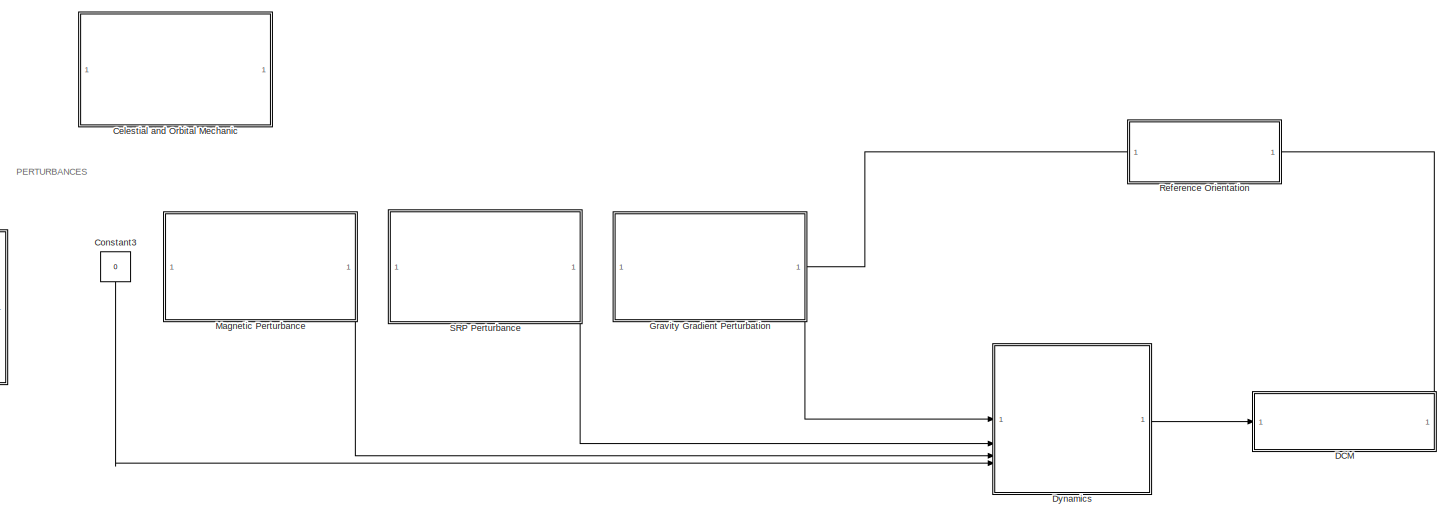
[diagram: root canvas - part 1/3, central region]
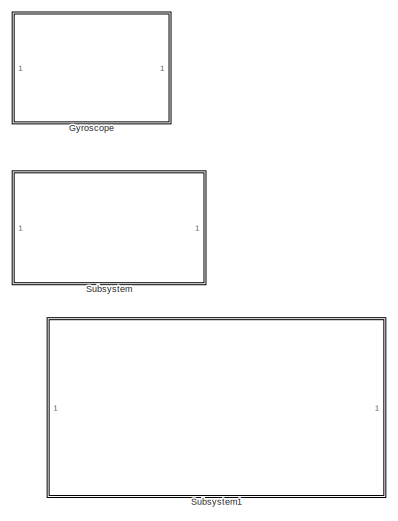
[diagram: root canvas - part 2/3, middle right region]
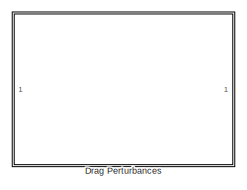
[diagram: root canvas - part 3/3, middle left region]
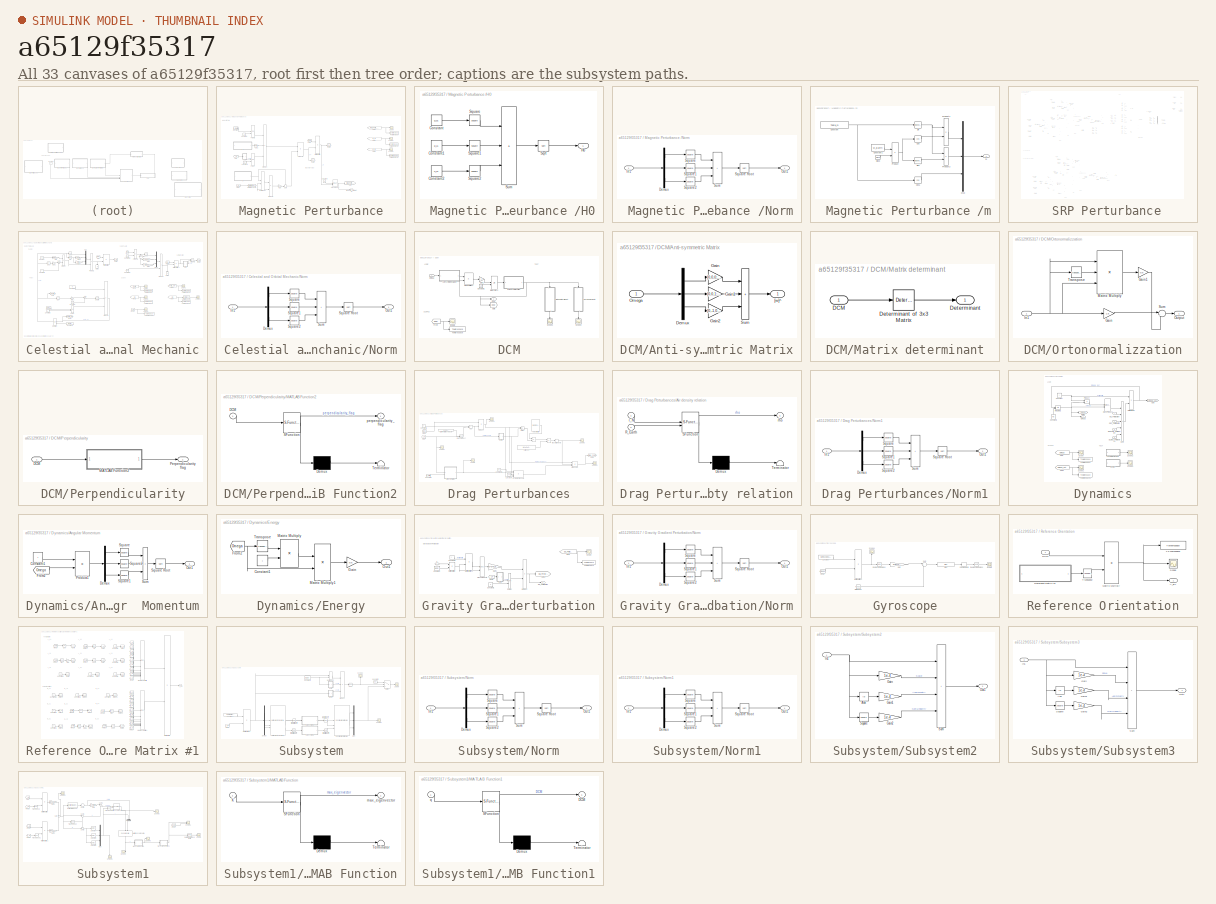
[diagram: thumbnail index - all 33 canvases of the model, root first then tree order]
MODEL slx_a65129f35317
KIND model
CONFIG AbsTol = auto
CONFIG EnableMultiTasking = off
CONFIG FixedStep = 0.1
CONFIG MaxStep = auto
CONFIG MinStep = auto
CONFIG RelTol = 1e-3
CONFIG SampleTimeConstraint = Unconstrained
CONFIG SolverName = ode8
CONFIG StartTime = 0.0
CONFIG StopTime = 1000
BLOCK [SubSystem]  Magnetic Perturbance 
  NameLocation = top
  PortSchema = {"entries":[{"content":{"sides":[{"content":{"connectorIds":[]},"type":"ConnectorPlacement.EquallySpacedRectSide","uuid":"e985e879-37b8-4f0c-a60b-74d5e4b5102c"},{"content":{"connectorIds":[],"side":"RIGHT"},"type":"ConnectorPlacement.EquallySpacedRectSide","uuid":"1f0cb419-685e-4dd3-ab14-45869a41b9c2"},{"content":{"connectorIds":[],"side":"TOP"},"type":"ConnectorPlacement.EquallySpacedRectSide","u...<+379ch>
BLOCK [Constant]  Magnetic Perturbance /Constant
  Value = R_Earth
BLOCK [Constant]  Magnetic Perturbance /Constant1
  Value = 3
BLOCK [Constant]  Magnetic Perturbance /Constant2
  Value = 3
BLOCK [Constant]  Magnetic Perturbance /Constant3
  Value = j_B
BLOCK [Reference]  Magnetic Perturbance /Cross Product  REF=matrix_library/Cross Product
  LibrarySourceBlock = simulink/Matrix\nOperations/Cross Product
  SourceBlock = matrix_library/Cross Product
  SourceType = CrossProduct
BLOCK [DotProduct]  Magnetic Perturbance /Dot Product
  OutDataTypeStr = Inherit: Inherit via internal rule
BLOCK [From]  Magnetic Perturbance /From
  GotoTag = r_N
  TagVisibility = global
BLOCK [From]  Magnetic Perturbance /From1
  GotoTag = r_N
  TagVisibility = global
BLOCK [From]  Magnetic Perturbance /From2
  GotoTag = DCM
  TagVisibility = global
BLOCK [From]  Magnetic Perturbance /From3
  GotoTag = Magnetic_Perturbation
  TagVisibility = global
BLOCK [From]  Magnetic Perturbance /From4
  GotoTag = b_N
BLOCK [From]  Magnetic Perturbance /From5
  GotoTag = b_B
BLOCK [Gain]  Magnetic Perturbance /Gain
  Gain = 3
BLOCK [Gain]  Magnetic Perturbance /Gain1
  Gain = 10^-9
BLOCK [Goto]  Magnetic Perturbance /Goto
  GotoTag = Magnetic_Perturbation
  TagVisibility = global
BLOCK [Goto]  Magnetic Perturbance /Goto1
  GotoTag = b_B
BLOCK [Goto]  Magnetic Perturbance /Goto2
  GotoTag = b_N
BLOCK [SubSystem]  Magnetic Perturbance /H0
BLOCK [Constant]  Magnetic Perturbance /H0/Constant
  Value = g_01
BLOCK [Constant]  Magnetic Perturbance /H0/Constant1
  Value = g_11
BLOCK [Constant]  Magnetic Perturbance /H0/Constant2
  Value = h_11
BLOCK [Outport]  Magnetic Perturbance /H0/H0
BLOCK [Sqrt]  Magnetic Perturbance /H0/Sqrt
BLOCK [Math]  Magnetic Perturbance /H0/Square
  Operator = square
BLOCK [Math]  Magnetic Perturbance /H0/Square1
  Operator = square
BLOCK [Math]  Magnetic Perturbance /H0/Square2
  Operator = square
BLOCK [Sum]  Magnetic Perturbance /H0/Sum
  IconShape = rectangular
  Inputs = +++
BLOCK [Outport]  Magnetic Perturbance /Magnetic_Perturbation
BLOCK [Product]  Magnetic Perturbance /Matrix Multiply
  Multiplication = Matrix(*)
BLOCK [SubSystem]  Magnetic Perturbance /Norm
BLOCK [Demux]  Magnetic Perturbance /Norm/Demux
  Outputs = 3
BLOCK [Inport]  Magnetic Perturbance /Norm/In1
BLOCK [Outport]  Magnetic Perturbance /Norm/Out1
BLOCK [Math]  Magnetic Perturbance /Norm/Square
  Operator = square
BLOCK [Sqrt]  Magnetic Perturbance /Norm/Square Root
BLOCK [Math]  Magnetic Perturbance /Norm/Square1
  Operator = square
BLOCK [Math]  Magnetic Perturbance /Norm/Square2
  Operator = square
BLOCK [Sum]  Magnetic Perturbance /Norm/Sum
  IconShape = rectangular
  Inputs = +++
BLOCK [Reference]  Magnetic Perturbance /Normalize Vector  REF=vrlib/Utilities/Normalize Vector
  SourceBlock = vrlib/Utilities/Normalize Vector
  SourceType = Normalize Vector
BLOCK [Math]  Magnetic Perturbance /Power
  Operator = pow
BLOCK [Math]  Magnetic Perturbance /Power1
  Operator = pow
BLOCK [Product]  Magnetic Perturbance /Product
  Inputs = **/
BLOCK [Product]  Magnetic Perturbance /Product1
BLOCK [Product]  Magnetic Perturbance /Product2
BLOCK [Scope]  Magnetic Perturbance /Scope
  Floating = off
  NumInputPorts = 1
  ScopeSpecificationString = Simulink.scopes.TimeScopeBlockCfg('CurrentConfiguration', extmgr.ConfigurationSet(extmgr.Configuration('Core','General UI',true),extmgr.Configuration('Core','Source UI',true),extmgr.Configuration('Sources','WiredSimulink',true,'DataLoggingVariableName','ScopeData1'),extmgr.Configuration('Visuals','Time Domain',true,'SerializedDisplays',{struct('MinYLimReal','-0.0000016','MaxYLimReal','0.0000015','...<+1789ch>
BLOCK [Scope]  Magnetic Perturbance /Scope1
  Floating = off
  NumInputPorts = 1
  ScopeSpecificationString = Simulink.scopes.TimeScopeBlockCfg('CurrentConfiguration', extmgr.ConfigurationSet(extmgr.Configuration('Core','General UI',true),extmgr.Configuration('Core','Source UI',true),extmgr.Configuration('Sources','WiredSimulink',true,'DataLoggingVariableName','ScopeData2'),extmgr.Configuration('Visuals','Time Domain',true,'SerializedDisplays',{struct('MinYLimReal','-0.000028','MaxYLimReal','0.000016','YL...<+1423ch>
BLOCK [Scope]  Magnetic Perturbance /Scope2
  Floating = off
  NumInputPorts = 1
  ScopeSpecificationString = Simulink.scopes.TimeScopeBlockCfg('CurrentConfiguration', extmgr.ConfigurationSet(extmgr.Configuration('Core','General UI',true),extmgr.Configuration('Core','Source UI',true),extmgr.Configuration('Sources','WiredSimulink',true,'DataLoggingVariableName','ScopeData3'),extmgr.Configuration('Visuals','Time Domain',true,'SerializedDisplays',{struct('MinYLimReal','-0.00003','MaxYLimReal','0.000024','YLa...<+1419ch>
BLOCK [Sum]  Magnetic Perturbance /Sum
  Inputs = -+|
BLOCK [ToWorkspace]  Magnetic Perturbance /To Workspace
  FixptAsFi = on
  MaxDataPoints = inf
  SampleTime = -1
  SaveFormat = Timeseries
  VariableName = Magnetic_Perturbation
BLOCK [ToWorkspace]  Magnetic Perturbance /To Workspace1
  FixptAsFi = on
  MaxDataPoints = inf
  SampleTime = -1
  SaveFormat = Timeseries
  VariableName = magnetic_field_N
BLOCK [ToWorkspace]  Magnetic Perturbance /To Workspace2
  FixptAsFi = on
  MaxDataPoints = inf
  SampleTime = -1
  SaveFormat = Timeseries
  VariableName = Magnetic_field_B
BLOCK [SubSystem]  Magnetic Perturbance /m
BLOCK [Clock]  Magnetic Perturbance /m/Clock
BLOCK [Constant]  Magnetic Perturbance /m/Constant
  Value = Theta_m
BLOCK [Constant]  Magnetic Perturbance /m/Constant1
  Value = w_Earth
BLOCK [Trigonometry]  Magnetic Perturbance /m/Cos
  Operator = cos
BLOCK [Trigonometry]  Magnetic Perturbance /m/Cos1
  Operator = cos
BLOCK [Mux]  Magnetic Perturbance /m/Mux
  DisplayOption = bar
  Inputs = 3
BLOCK [Product]  Magnetic Perturbance /m/Product
BLOCK [Product]  Magnetic Perturbance /m/Product1
BLOCK [Product]  Magnetic Perturbance /m/Product2
BLOCK [Trigonometry]  Magnetic Perturbance /m/Sin
BLOCK [Trigonometry]  Magnetic Perturbance /m/Sin1
BLOCK [Outport]  Magnetic Perturbance /m/m
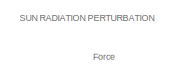
[diagram:  SRP Perturbance - part 1/10, top left region]
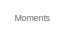
[diagram:  SRP Perturbance - part 2/10, top center region]
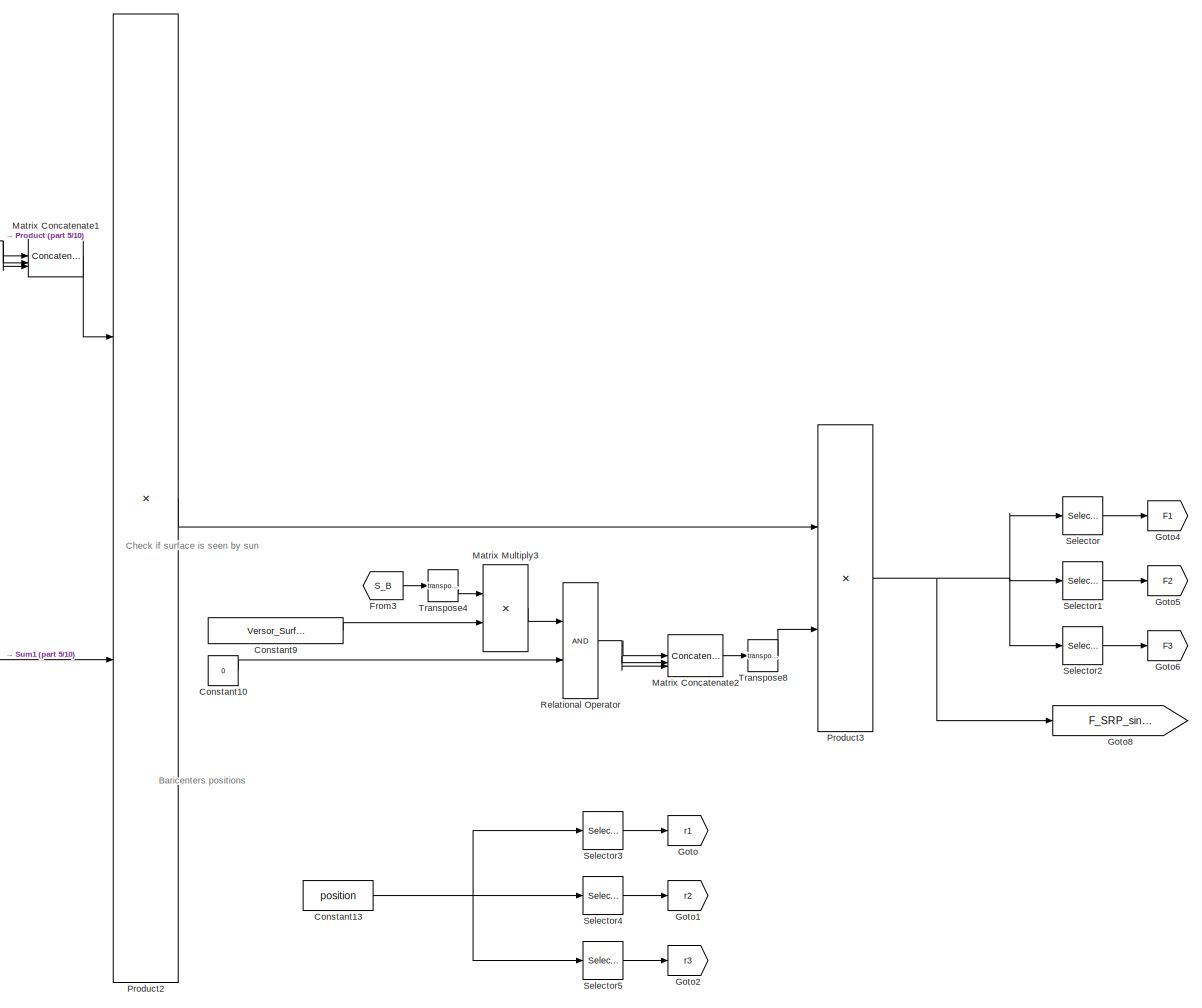
[diagram:  SRP Perturbance - part 3/10, top center region]
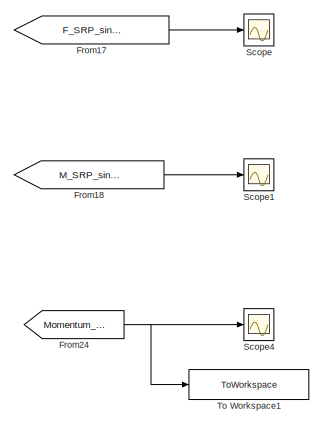
[diagram:  SRP Perturbance - part 4/10, top right region]
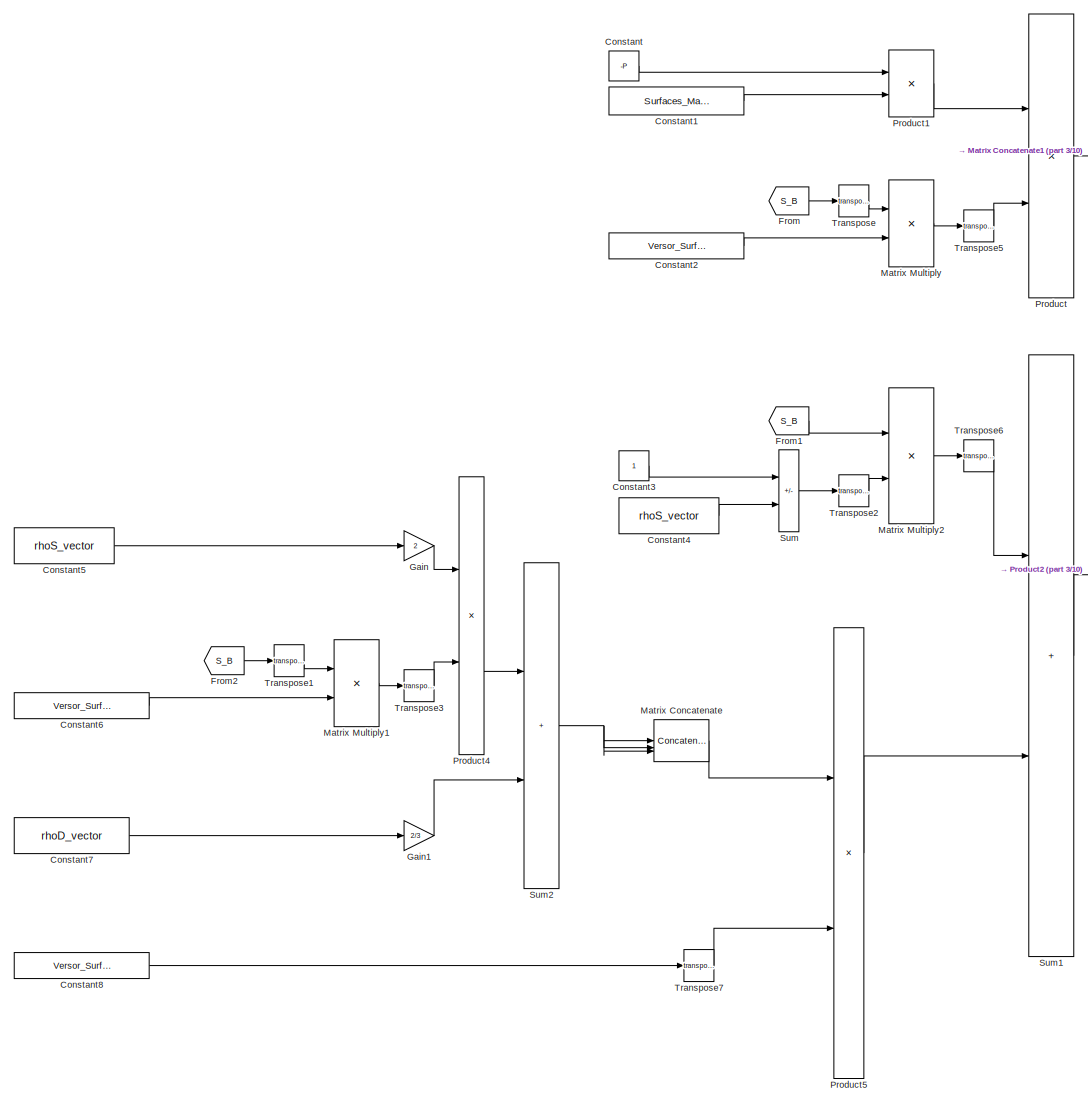
[diagram:  SRP Perturbance - part 5/10, top left region]
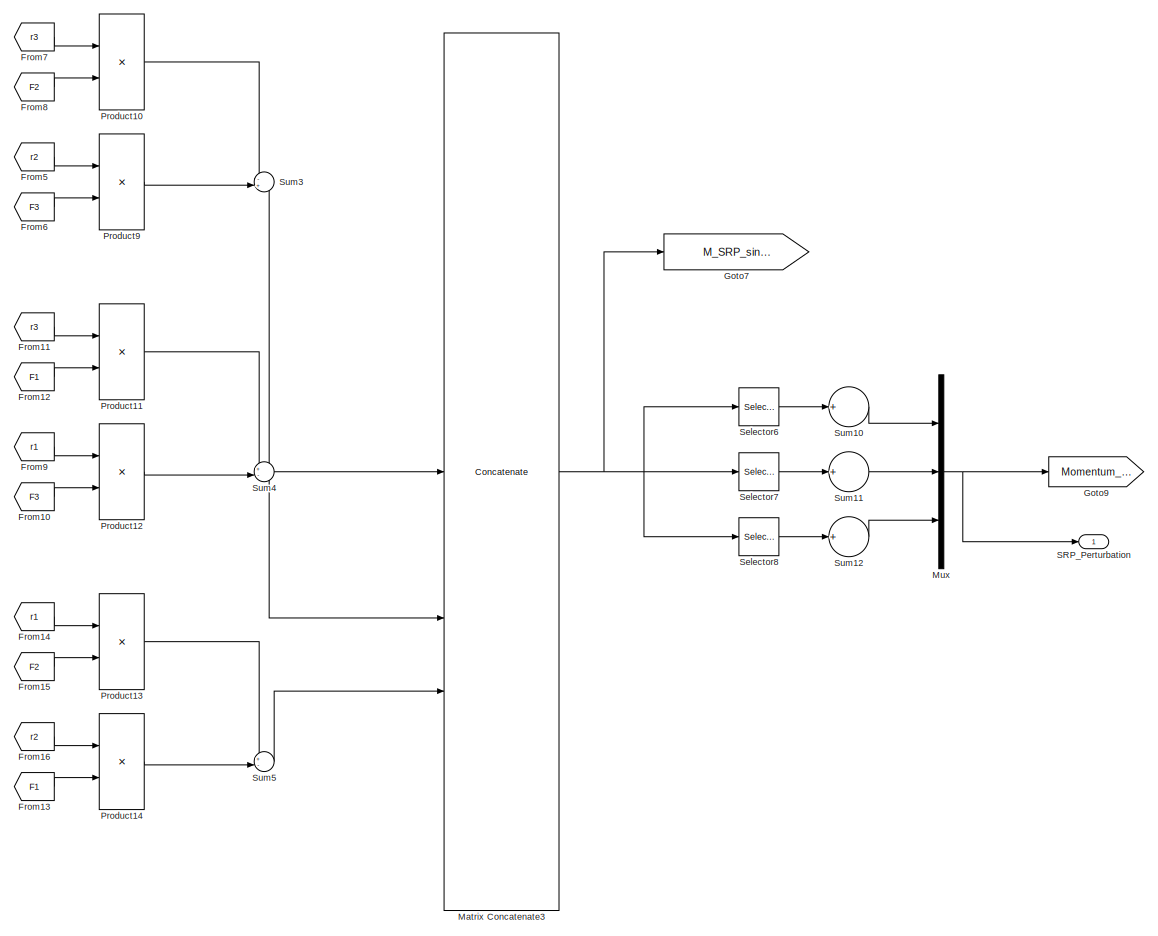
[diagram:  SRP Perturbance - part 6/10, top right region]
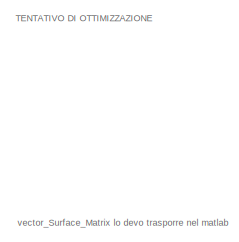
[diagram:  SRP Perturbance - part 7/10, middle left region]
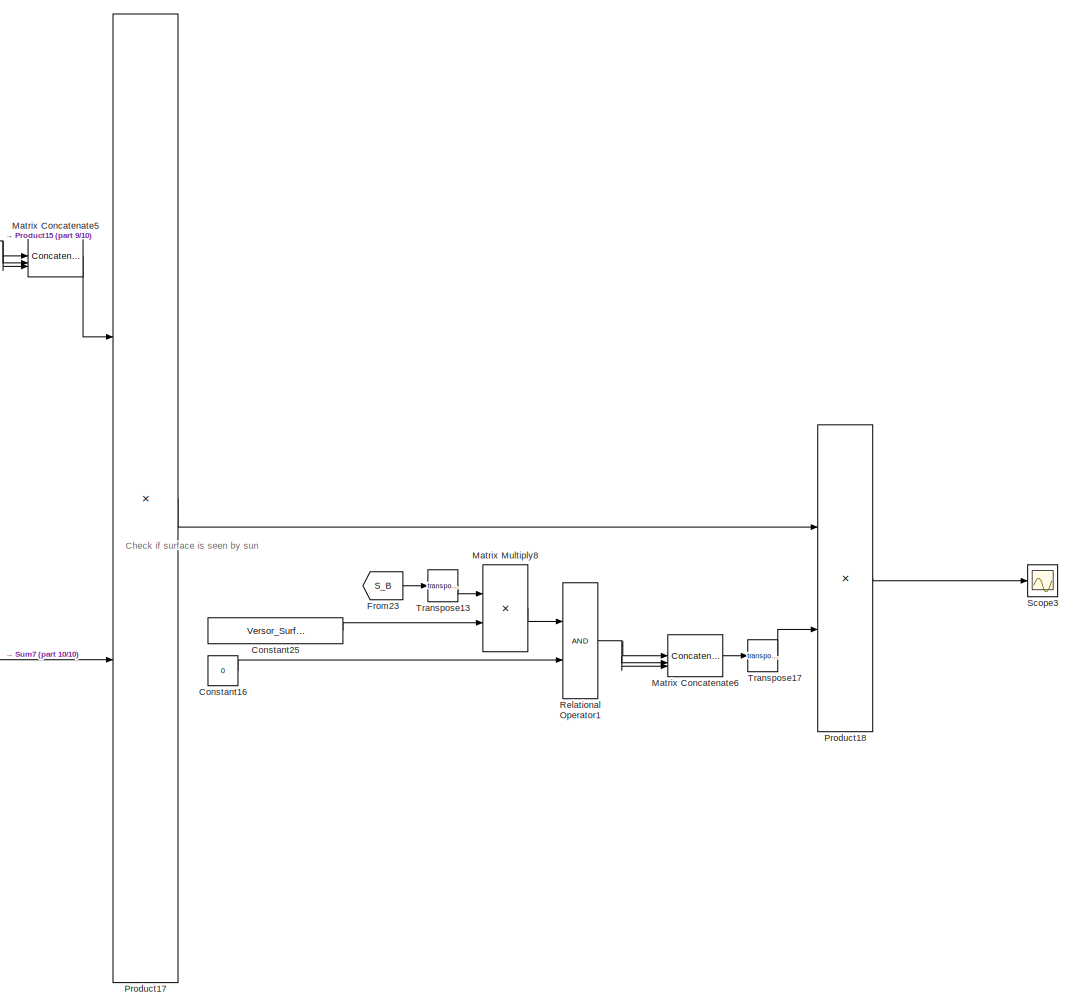
[diagram:  SRP Perturbance - part 8/10, bottom center region]
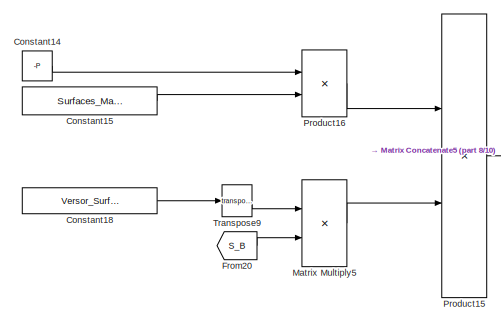
[diagram:  SRP Perturbance - part 9/10, middle left region]
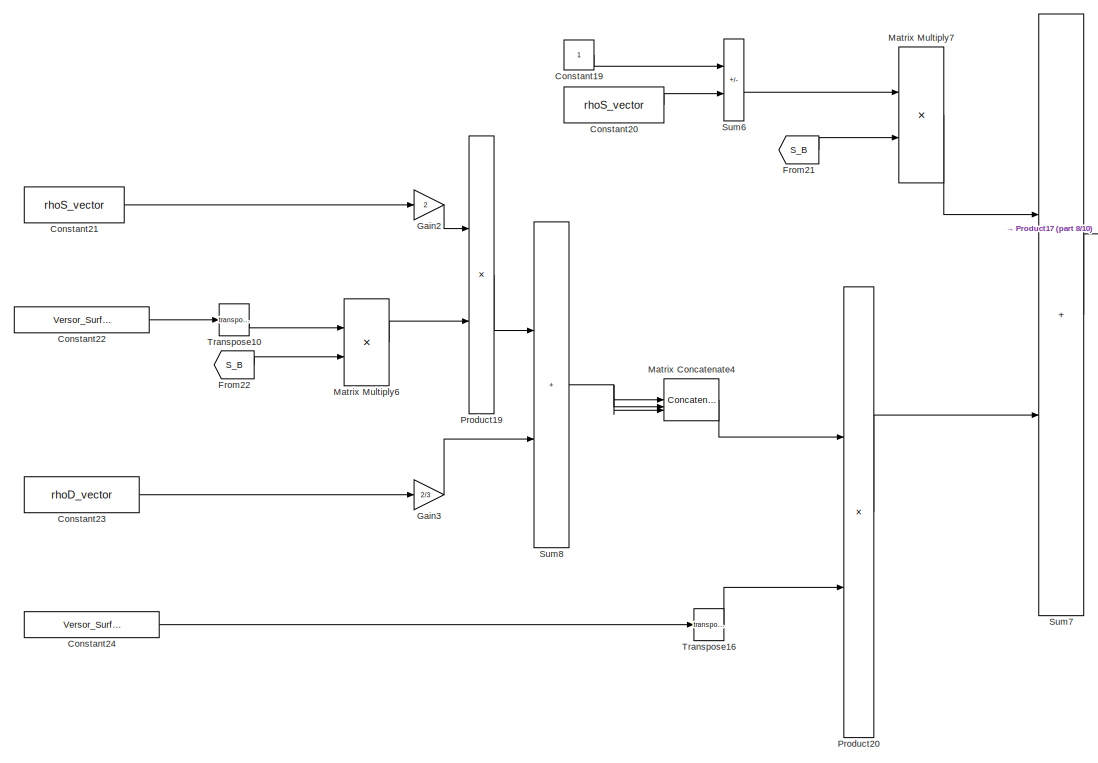
[diagram:  SRP Perturbance - part 10/10, bottom left region]
BLOCK [SubSystem]  SRP Perturbance
  NameLocation = top
  PortSchema = {"entries":[{"content":{"sides":[{"content":{"connectorIds":[]},"type":"ConnectorPlacement.EquallySpacedRectSide","uuid":"e985e879-37b8-4f0c-a60b-74d5e4b5102c"},{"content":{"connectorIds":[],"side":"RIGHT"},"type":"ConnectorPlacement.EquallySpacedRectSide","uuid":"1f0cb419-685e-4dd3-ab14-45869a41b9c2"},{"content":{"connectorIds":[],"side":"TOP"},"type":"ConnectorPlacement.EquallySpacedRectSide","u...<+379ch>
BLOCK [Constant]  SRP Perturbance/Constant
  Value = -P
BLOCK [Constant]  SRP Perturbance/Constant1
  Value = Surfaces_Matrix
BLOCK [Constant]  SRP Perturbance/Constant10
  Value = 0
BLOCK [Constant]  SRP Perturbance/Constant13
  Value = position
BLOCK [Constant]  SRP Perturbance/Constant14
  Value = -P
BLOCK [Constant]  SRP Perturbance/Constant15
  Value = Surfaces_Matrix
BLOCK [Constant]  SRP Perturbance/Constant16
  Value = 0
BLOCK [Constant]  SRP Perturbance/Constant18
  Value = Versor_Surfaces_Matrix
BLOCK [Constant]  SRP Perturbance/Constant19
BLOCK [Constant]  SRP Perturbance/Constant2
  Value = Versor_Surfaces_Matrix
BLOCK [Constant]  SRP Perturbance/Constant20
  Value = rhoS_vector
BLOCK [Constant]  SRP Perturbance/Constant21
  Value = rhoS_vector
BLOCK [Constant]  SRP Perturbance/Constant22
  Value = Versor_Surfaces_Matrix
BLOCK [Constant]  SRP Perturbance/Constant23
  Value = rhoD_vector
BLOCK [Constant]  SRP Perturbance/Constant24
  Value = Versor_Surfaces_Matrix
BLOCK [Constant]  SRP Perturbance/Constant25
  Value = Versor_Surfaces_Matrix
BLOCK [Constant]  SRP Perturbance/Constant3
BLOCK [Constant]  SRP Perturbance/Constant4
  Value = rhoS_vector
BLOCK [Constant]  SRP Perturbance/Constant5
  Value = rhoS_vector
BLOCK [Constant]  SRP Perturbance/Constant6
  Value = Versor_Surfaces_Matrix
BLOCK [Constant]  SRP Perturbance/Constant7
  Value = rhoD_vector
BLOCK [Constant]  SRP Perturbance/Constant8
  Value = Versor_Surfaces_Matrix
BLOCK [Constant]  SRP Perturbance/Constant9
  Value = Versor_Surfaces_Matrix
BLOCK [From]  SRP Perturbance/From
  GotoTag = S_B
  TagVisibility = global
BLOCK [From]  SRP Perturbance/From1
  GotoTag = S_B
  TagVisibility = global
BLOCK [From]  SRP Perturbance/From10
  GotoTag = F3
BLOCK [From]  SRP Perturbance/From11
  GotoTag = r3
BLOCK [From]  SRP Perturbance/From12
  GotoTag = F1
BLOCK [From]  SRP Perturbance/From13
  GotoTag = F1
BLOCK [From]  SRP Perturbance/From14
  GotoTag = r1
BLOCK [From]  SRP Perturbance/From15
  GotoTag = F2
BLOCK [From]  SRP Perturbance/From16
  GotoTag = r2
BLOCK [From]  SRP Perturbance/From17
  GotoTag = F_SRP_single_elements
BLOCK [From]  SRP Perturbance/From18
  GotoTag = M_SRP_single_elements
BLOCK [From]  SRP Perturbance/From2
  GotoTag = S_B
  TagVisibility = global
BLOCK [From]  SRP Perturbance/From20
  GotoTag = S_B
  TagVisibility = global
BLOCK [From]  SRP Perturbance/From21
  GotoTag = S_B
  TagVisibility = global
BLOCK [From]  SRP Perturbance/From22
  GotoTag = S_B
  TagVisibility = global
BLOCK [From]  SRP Perturbance/From23
  GotoTag = S_B
  TagVisibility = global
BLOCK [From]  SRP Perturbance/From24
  GotoTag = Momentum_SRP
  TagVisibility = global
BLOCK [From]  SRP Perturbance/From3
  GotoTag = S_B
  TagVisibility = global
BLOCK [From]  SRP Perturbance/From5
  GotoTag = r2
BLOCK [From]  SRP Perturbance/From6
  GotoTag = F3
BLOCK [From]  SRP Perturbance/From7
  GotoTag = r3
BLOCK [From]  SRP Perturbance/From8
  GotoTag = F2
BLOCK [From]  SRP Perturbance/From9
  GotoTag = r1
BLOCK [Gain]  SRP Perturbance/Gain
  Gain = 2
BLOCK [Gain]  SRP Perturbance/Gain1
  Gain = 2/3
BLOCK [Gain]  SRP Perturbance/Gain2
  Gain = 2
BLOCK [Gain]  SRP Perturbance/Gain3
  Gain = 2/3
BLOCK [Goto]  SRP Perturbance/Goto
  GotoTag = r1
BLOCK [Goto]  SRP Perturbance/Goto1
  GotoTag = r2
BLOCK [Goto]  SRP Perturbance/Goto2
  GotoTag = r3
BLOCK [Goto]  SRP Perturbance/Goto4
  GotoTag = F1
BLOCK [Goto]  SRP Perturbance/Goto5
  GotoTag = F2
BLOCK [Goto]  SRP Perturbance/Goto6
  GotoTag = F3
BLOCK [Goto]  SRP Perturbance/Goto7
  GotoTag = M_SRP_single_elements
BLOCK [Goto]  SRP Perturbance/Goto8
  GotoTag = F_SRP_single_elements
BLOCK [Goto]  SRP Perturbance/Goto9
  GotoTag = Momentum_SRP
  TagVisibility = global
BLOCK [Concatenate]  SRP Perturbance/Matrix Concatenate
  ConcatenateDimension = 2
  Mode = Multidimensional array
  NumInputs = 3
BLOCK [Concatenate]  SRP Perturbance/Matrix Concatenate1
  ConcatenateDimension = 2
  Mode = Multidimensional array
  NumInputs = 3
BLOCK [Concatenate]  SRP Perturbance/Matrix Concatenate2
  Mode = Multidimensional array
  NumInputs = 3
BLOCK [Concatenate]  SRP Perturbance/Matrix Concatenate3
  ConcatenateDimension = 2
  Mode = Multidimensional array
  NumInputs = 3
BLOCK [Concatenate]  SRP Perturbance/Matrix Concatenate4
  ConcatenateDimension = 2
  Mode = Multidimensional array
  NumInputs = 3
BLOCK [Concatenate]  SRP Perturbance/Matrix Concatenate5
  ConcatenateDimension = 2
  Mode = Multidimensional array
  NumInputs = 3
BLOCK [Concatenate]  SRP Perturbance/Matrix Concatenate6
  Mode = Multidimensional array
  NumInputs = 3
BLOCK [Product]  SRP Perturbance/Matrix Multiply
  Multiplication = Matrix(*)
BLOCK [Product]  SRP Perturbance/Matrix Multiply1
  Multiplication = Matrix(*)
BLOCK [Product]  SRP Perturbance/Matrix Multiply2
  Multiplication = Matrix(*)
BLOCK [Product]  SRP Perturbance/Matrix Multiply3
  Multiplication = Matrix(*)
BLOCK [Product]  SRP Perturbance/Matrix Multiply5
  Multiplication = Matrix(*)
BLOCK [Product]  SRP Perturbance/Matrix Multiply6
  Multiplication = Matrix(*)
BLOCK [Product]  SRP Perturbance/Matrix Multiply7
  Multiplication = Matrix(*)
BLOCK [Product]  SRP Perturbance/Matrix Multiply8
  Multiplication = Matrix(*)
BLOCK [Mux]  SRP Perturbance/Mux
  DisplayOption = bar
  Inputs = 3
BLOCK [Product]  SRP Perturbance/Product
BLOCK [Product]  SRP Perturbance/Product1
BLOCK [Product]  SRP Perturbance/Product10
BLOCK [Product]  SRP Perturbance/Product11
BLOCK [Product]  SRP Perturbance/Product12
BLOCK [Product]  SRP Perturbance/Product13
BLOCK [Product]  SRP Perturbance/Product14
BLOCK [Product]  SRP Perturbance/Product15
BLOCK [Product]  SRP Perturbance/Product16
BLOCK [Product]  SRP Perturbance/Product17
BLOCK [Product]  SRP Perturbance/Product18
BLOCK [Product]  SRP Perturbance/Product19
BLOCK [Product]  SRP Perturbance/Product2
BLOCK [Product]  SRP Perturbance/Product20
BLOCK [Product]  SRP Perturbance/Product3
BLOCK [Product]  SRP Perturbance/Product4
BLOCK [Product]  SRP Perturbance/Product5
BLOCK [Product]  SRP Perturbance/Product9
BLOCK [RelationalOperator]  SRP Perturbance/Relational Operator
  InputSameDT = off
  OutDataTypeStr = boolean
  RndMeth = Simplest
BLOCK [RelationalOperator]  SRP Perturbance/Relational Operator1
  InputSameDT = off
  OutDataTypeStr = boolean
  RndMeth = Simplest
BLOCK [Outport]  SRP Perturbance/SRP_Perturbation
BLOCK [Scope]  SRP Perturbance/Scope
  Floating = off
  NumInputPorts = 1
  ScopeSpecificationString = Simulink.scopes.TimeScopeBlockCfg('CurrentConfiguration', extmgr.ConfigurationSet(extmgr.Configuration('Core','General UI',true),extmgr.Configuration('Core','Source UI',true),extmgr.Configuration('Sources','WiredSimulink',true,'DataLoggingVariableName','ScopeData1'),extmgr.Configuration('Visuals','Time Domain',true,'SerializedDisplays',{struct('MinYLimReal','-0.0000011','MaxYLimReal','0.0000011','...<+1813ch>
BLOCK [Scope]  SRP Perturbance/Scope1
  Floating = off
  NumInputPorts = 1
  ScopeSpecificationString = Simulink.scopes.TimeScopeBlockCfg('CurrentConfiguration', extmgr.ConfigurationSet(extmgr.Configuration('Core','General UI',true),extmgr.Configuration('Core','Source UI',true),extmgr.Configuration('Sources','WiredSimulink',true,'DataLoggingVariableName','ScopeData2'),extmgr.Configuration('Visuals','Time Domain',true,'SerializedDisplays',{struct('MinYLimReal','-0.00000048','MaxYLimReal','0.00000048'...<+1683ch>
BLOCK [Scope]  SRP Perturbance/Scope3
  Floating = off
  NumInputPorts = 1
  ScopeSpecificationString = Simulink.scopes.TimeScopeBlockCfg('CurrentConfiguration', extmgr.ConfigurationSet(extmgr.Configuration('Core','General UI',true),extmgr.Configuration('Core','Source UI',true),extmgr.Configuration('Sources','WiredSimulink',true),extmgr.Configuration('Visuals','Time Domain',true,'SerializedDisplays',{struct('MinYLimReal','-0.0000011','MaxYLimReal','0.0000011','YLabelReal','','MinYLimMag','0.0000000'...<+1806ch>
BLOCK [Scope]  SRP Perturbance/Scope4
  Floating = off
  NumInputPorts = 1
  ScopeSpecificationString = Simulink.scopes.TimeScopeBlockCfg('CurrentConfiguration', extmgr.ConfigurationSet(extmgr.Configuration('Core','General UI',true),extmgr.Configuration('Core','Source UI',true),extmgr.Configuration('Sources','WiredSimulink',true,'DataLoggingVariableName','ScopeData8'),extmgr.Configuration('Visuals','Time Domain',true,'SerializedDisplays',{struct('MinYLimReal','-0.0000000000000000000000041','MaxYLimR...<+1667ch>
BLOCK [Selector]  SRP Perturbance/Selector
  IndexOptions = Select all,Index vector (dialog)
  Indices = 1,1
  InputPortWidth = 3
  NumberOfDimensions = 2
  OutputSizes = 1,1
BLOCK [Selector]  SRP Perturbance/Selector1
  IndexOptions = Select all,Index vector (dialog)
  Indices = 1,2
  InputPortWidth = 3
  NumberOfDimensions = 2
  OutputSizes = 1,1
BLOCK [Selector]  SRP Perturbance/Selector2
  IndexOptions = Select all,Index vector (dialog)
  Indices = 1,3
  InputPortWidth = 3
  NumberOfDimensions = 2
  OutputSizes = 1,1
BLOCK [Selector]  SRP Perturbance/Selector3
  IndexOptions = Select all,Index vector (dialog)
  Indices = 1,1
  InputPortWidth = 3
  NumberOfDimensions = 2
  OutputSizes = 1,1
BLOCK [Selector]  SRP Perturbance/Selector4
  IndexOptions = Select all,Index vector (dialog)
  Indices = 1,2
  InputPortWidth = 3
  NumberOfDimensions = 2
  OutputSizes = 1,1
BLOCK [Selector]  SRP Perturbance/Selector5
  IndexOptions = Select all,Index vector (dialog)
  Indices = 1,3
  InputPortWidth = 3
  NumberOfDimensions = 2
  OutputSizes = 1,1
BLOCK [Selector]  SRP Perturbance/Selector6
  IndexOptions = Select all,Index vector (dialog)
  Indices = [1 3],1
  InputPortWidth = 3
  NumberOfDimensions = 2
  OutputSizes = 1,1
BLOCK [Selector]  SRP Perturbance/Selector7
  IndexOptions = Select all,Index vector (dialog)
  Indices = [1 3],2
  InputPortWidth = 3
  NumberOfDimensions = 2
  OutputSizes = 1,1
BLOCK [Selector]  SRP Perturbance/Selector8
  IndexOptions = Select all,Index vector (dialog)
  Indices = [1 3],3
  InputPortWidth = 3
  NumberOfDimensions = 2
  OutputSizes = 1,1
BLOCK [Sum]  SRP Perturbance/Sum
  IconShape = rectangular
  Inputs = +|-
BLOCK [Sum]  SRP Perturbance/Sum1
  IconShape = rectangular
  Inputs = +|+
BLOCK [Sum]  SRP Perturbance/Sum10
  Inputs = +
BLOCK [Sum]  SRP Perturbance/Sum11
  Inputs = +
BLOCK [Sum]  SRP Perturbance/Sum12
  Inputs = +
BLOCK [Sum]  SRP Perturbance/Sum2
  IconShape = rectangular
  Inputs = +|+
BLOCK [Sum]  SRP Perturbance/Sum3
  Inputs = -+|
BLOCK [Sum]  SRP Perturbance/Sum4
  Inputs = +-|
BLOCK [Sum]  SRP Perturbance/Sum5
  Inputs = +-|
BLOCK [Sum]  SRP Perturbance/Sum6
  IconShape = rectangular
  Inputs = +|-
BLOCK [Sum]  SRP Perturbance/Sum7
  IconShape = rectangular
  Inputs = +|+
BLOCK [Sum]  SRP Perturbance/Sum8
  IconShape = rectangular
  Inputs = +|+
BLOCK [ToWorkspace]  SRP Perturbance/To Workspace1
  FixptAsFi = on
  MaxDataPoints = inf
  SampleTime = -1
  VariableName = momentum_SRP
BLOCK [Math]  SRP Perturbance/Transpose
  Operator = transpose
BLOCK [Math]  SRP Perturbance/Transpose1
  Operator = transpose
BLOCK [Math]  SRP Perturbance/Transpose10
  Operator = transpose
BLOCK [Math]  SRP Perturbance/Transpose13
  Operator = transpose
BLOCK [Math]  SRP Perturbance/Transpose16
  Operator = transpose
BLOCK [Math]  SRP Perturbance/Transpose17
  Operator = transpose
BLOCK [Math]  SRP Perturbance/Transpose2
  Operator = transpose
BLOCK [Math]  SRP Perturbance/Transpose3
  Operator = transpose
BLOCK [Math]  SRP Perturbance/Transpose4
  Operator = transpose
BLOCK [Math]  SRP Perturbance/Transpose5
  Operator = transpose
BLOCK [Math]  SRP Perturbance/Transpose6
  Operator = transpose
BLOCK [Math]  SRP Perturbance/Transpose7
  Operator = transpose
BLOCK [Math]  SRP Perturbance/Transpose8
  Operator = transpose
BLOCK [Math]  SRP Perturbance/Transpose9
  Operator = transpose
BLOCK [SubSystem] Celestial and Orbital Mechanic
BLOCK [Clock] Celestial and Orbital Mechanic/Clock
BLOCK [Constant] Celestial and Orbital Mechanic/Constant
  Value = a
BLOCK [Constant] Celestial and Orbital Mechanic/Constant1
  Value = (1-e^2)
BLOCK [Constant] Celestial and Orbital Mechanic/Constant11
  Value = R_sun
BLOCK [Constant] Celestial and Orbital Mechanic/Constant12
  Value = n_sun
BLOCK [Constant] Celestial and Orbital Mechanic/Constant2
  Value = 3/2
BLOCK [Constant] Celestial and Orbital Mechanic/Constant3
  Value = n
BLOCK [Constant] Celestial and Orbital Mechanic/Constant4
BLOCK [Constant] Celestial and Orbital Mechanic/Constant5
BLOCK [Constant] Celestial and Orbital Mechanic/Constant6
  NameLocation = top
  Value = theta0
BLOCK [Trigonometry] Celestial and Orbital Mechanic/Cos
  Operator = cos
BLOCK [Trigonometry] Celestial and Orbital Mechanic/Cos1
  Operator = cos
BLOCK [Trigonometry] Celestial and Orbital Mechanic/Cos2
  Operator = cos
BLOCK [Trigonometry] Celestial and Orbital Mechanic/Cos3
  Operator = cos
BLOCK [From] Celestial and Orbital Mechanic/From
  GotoTag = DCM
  TagVisibility = global
BLOCK [From] Celestial and Orbital Mechanic/From1
  GotoTag = Theta
  TagVisibility = global
BLOCK [From] Celestial and Orbital Mechanic/From19
  GotoTag = S_B
  TagVisibility = global
BLOCK [From] Celestial and Orbital Mechanic/From2
  GotoTag = Theta_dot
BLOCK [From] Celestial and Orbital Mechanic/From3
  GotoTag = r_N
  TagVisibility = global
BLOCK [From] Celestial and Orbital Mechanic/From4
  GotoTag = r_B
  TagVisibility = global
BLOCK [From] Celestial and Orbital Mechanic/From5
  GotoTag = DCM
  TagVisibility = global
BLOCK [Gain] Celestial and Orbital Mechanic/Gain
  Gain = (1-e^2)
BLOCK [Gain] Celestial and Orbital Mechanic/Gain1
  Gain = e
BLOCK [Gain] Celestial and Orbital Mechanic/Gain2
  Gain = e
BLOCK [Gain] Celestial and Orbital Mechanic/Gain3
  Gain = cos(i)
BLOCK [Gain] Celestial and Orbital Mechanic/Gain4
  Gain = sin(i)
BLOCK [Gain] Celestial and Orbital Mechanic/Gain5
  Gain = cos(epsilon)
BLOCK [Gain] Celestial and Orbital Mechanic/Gain6
  Gain = sin(epsilon)
BLOCK [Goto] Celestial and Orbital Mechanic/Goto
  GotoTag = Theta
  TagVisibility = global
BLOCK [Goto] Celestial and Orbital Mechanic/Goto1
  GotoTag = r_B
  TagVisibility = global
BLOCK [Goto] Celestial and Orbital Mechanic/Goto2
  GotoTag = r_N
  NameLocation = left
  TagVisibility = global
BLOCK [Goto] Celestial and Orbital Mechanic/Goto3
  GotoTag = Theta_dot
BLOCK [Goto] Celestial and Orbital Mechanic/Goto4
  GotoTag = S_B
  TagVisibility = global
BLOCK [Goto] Celestial and Orbital Mechanic/Goto5
  GotoTag = S_N
  NameLocation = left
  TagVisibility = global
BLOCK [Integrator] Celestial and Orbital Mechanic/Integrator
  InitialConditionSource = external
  NameLocation = top
  WrappedStateLowerValue = 0
  WrappedStateUpperValue = 2*pi
BLOCK [Product] Celestial and Orbital Mechanic/Matrix Multiply
  Multiplication = Matrix(*)
BLOCK [Product] Celestial and Orbital Mechanic/Matrix Multiply4
  Multiplication = Matrix(*)
BLOCK [Mux] Celestial and Orbital Mechanic/Mux
  DisplayOption = bar
  Inputs = 3
BLOCK [Mux] Celestial and Orbital Mechanic/Mux1
  DisplayOption = bar
  Inputs = 3
BLOCK [SubSystem] Celestial and Orbital Mechanic/Norm
BLOCK [Demux] Celestial and Orbital Mechanic/Norm/Demux
  Outputs = 3
BLOCK [Inport] Celestial and Orbital Mechanic/Norm/In1
BLOCK [Outport] Celestial and Orbital Mechanic/Norm/Out1
BLOCK [Math] Celestial and Orbital Mechanic/Norm/Square
  Operator = square
BLOCK [Sqrt] Celestial and Orbital Mechanic/Norm/Square Root
BLOCK [Math] Celestial and Orbital Mechanic/Norm/Square1
  Operator = square
BLOCK [Math] Celestial and Orbital Mechanic/Norm/Square2
  Operator = square
BLOCK [Sum] Celestial and Orbital Mechanic/Norm/Sum
  IconShape = rectangular
  Inputs = +++
BLOCK [Reference] Celestial and Orbital Mechanic/Normalize Vector  REF=vrlib/Utilities/Normalize Vector
  SourceBlock = vrlib/Utilities/Normalize Vector
  SourceType = Normalize Vector
BLOCK [Math] Celestial and Orbital Mechanic/Power
  Operator = pow
BLOCK [Product] Celestial and Orbital Mechanic/Product
  Inputs = */
BLOCK [Product] Celestial and Orbital Mechanic/Product1
  Inputs = **/
BLOCK [Product] Celestial and Orbital Mechanic/Product2
BLOCK [Product] Celestial and Orbital Mechanic/Product6
BLOCK [Product] Celestial and Orbital Mechanic/Product7
BLOCK [Product] Celestial and Orbital Mechanic/Product8
  Inputs = */
BLOCK [Scope] Celestial and Orbital Mechanic/Scope
  Floating = off
  NumInputPorts = 1
  ScopeSpecificationString = Simulink.scopes.TimeScopeBlockCfg('CurrentConfiguration', extmgr.ConfigurationSet(extmgr.Configuration('Core','General UI',true),extmgr.Configuration('Core','Source UI',true),extmgr.Configuration('Sources','WiredSimulink',true,'DataLoggingVariableName','ScopeData5'),extmgr.Configuration('Visuals','Time Domain',true,'SerializedDisplays',{struct('MinYLimReal','-0.13941','MaxYLimReal','1.25472','YLab...<+1732ch>
BLOCK [Scope] Celestial and Orbital Mechanic/Scope1
  Floating = off
  NumInputPorts = 1
  ScopeSpecificationString = Simulink.scopes.TimeScopeBlockCfg('CurrentConfiguration', extmgr.ConfigurationSet(extmgr.Configuration('Core','General UI',true),extmgr.Configuration('Core','Source UI',true),extmgr.Configuration('Sources','WiredSimulink',true,'DataLoggingVariableName','ScopeData6'),extmgr.Configuration('Visuals','Time Domain',true,'SerializedDisplays',{struct('MinYLimReal','0.001826','MaxYLimReal','0.001838','YLa...<+1376ch>
BLOCK [Scope] Celestial and Orbital Mechanic/Scope2
  Floating = off
  NumInputPorts = 1
  ScopeSpecificationString = Simulink.scopes.TimeScopeBlockCfg('CurrentConfiguration', extmgr.ConfigurationSet(extmgr.Configuration('Core','General UI',true),extmgr.Configuration('Core','Source UI',true),extmgr.Configuration('Sources','WiredSimulink',true,'DataLoggingVariableName','ScopeData7'),extmgr.Configuration('Visuals','Time Domain',true,'SerializedDisplays',{struct('MinYLimReal','-855375.00000','MaxYLimReal','7698375.0...<+1596ch>
BLOCK [Scope] Celestial and Orbital Mechanic/Scope3
  Floating = off
  NumInputPorts = 1
  ScopeSpecificationString = Simulink.scopes.TimeScopeBlockCfg('CurrentConfiguration', extmgr.ConfigurationSet(extmgr.Configuration('Core','General UI',true),extmgr.Configuration('Core','Source UI',true),extmgr.Configuration('Sources','WiredSimulink',true,'DataLoggingVariableName','ScopeData8'),extmgr.Configuration('Visuals','Time Domain',true,'SerializedDisplays',{struct('MinYLimReal','-1.24956','MaxYLimReal','1.24995','YLab...<+1521ch>
BLOCK [Scope] Celestial and Orbital Mechanic/Scope4
  Floating = off
  NumInputPorts = 1
  ScopeSpecificationString = Simulink.scopes.TimeScopeBlockCfg('CurrentConfiguration', extmgr.ConfigurationSet(extmgr.Configuration('Core','General UI',true),extmgr.Configuration('Core','Source UI',true),extmgr.Configuration('Sources','WiredSimulink',true,'DataLoggingVariableName','ScopeData4'),extmgr.Configuration('Visuals','Time Domain',true),extmgr.Configuration('Tools','Plot Navigation',true),extmgr.Configuration('Tools',...<+40ch>
BLOCK [Trigonometry] Celestial and Orbital Mechanic/Sin
BLOCK [Trigonometry] Celestial and Orbital Mechanic/Sin1
  NameLocation = left
BLOCK [Math] Celestial and Orbital Mechanic/Square
  Operator = square
BLOCK [Sum] Celestial and Orbital Mechanic/Sum
  Inputs = |++
BLOCK [Sum] Celestial and Orbital Mechanic/Sum1
  Inputs = |++
BLOCK [ToWorkspace] Celestial and Orbital Mechanic/To Workspace
  FixptAsFi = on
  MaxDataPoints = inf
  SampleTime = -1
  SaveFormat = Timeseries
  VariableName = Theta
BLOCK [ToWorkspace] Celestial and Orbital Mechanic/To Workspace1
  FixptAsFi = on
  MaxDataPoints = inf
  SampleTime = -1
  SaveFormat = Timeseries
  VariableName = Theta_dot
BLOCK [ToWorkspace] Celestial and Orbital Mechanic/To Workspace2
  FixptAsFi = on
  MaxDataPoints = inf
  SampleTime = -1
  VariableName = r_N
BLOCK [ToWorkspace] Celestial and Orbital Mechanic/To Workspace3
  FixptAsFi = on
  MaxDataPoints = inf
  SampleTime = -1
  SaveFormat = Timeseries
  VariableName = r_B
BLOCK [ToWorkspace] Celestial and Orbital Mechanic/To Workspace4
  FixptAsFi = on
  MaxDataPoints = inf
  SampleTime = -1
  SaveFormat = Timeseries
  VariableName = r_SUN_norm1
BLOCK [Constant] Constant3
  NameLocation = left
  Value = 0
BLOCK [SubSystem] DCM
  PortSchema = {"entries":[{"content":{"sides":[{"content":{"connectorIds":["In1"]},"type":"ConnectorPlacement.EquallySpacedRectSide","uuid":"36de77ec-8153-48fc-ae5a-ad0b0e2d3ce0"},{"content":{"connectorIds":[],"side":"RIGHT"},"type":"ConnectorPlacement.EquallySpacedRectSide","uuid":"5bb36846-76d5-425c-bf3c-97c4283359fa"},{"content":{"connectorIds":["Out1"],"side":"TOP"},"type":"ConnectorPlacement.EquallySpacedR...<+240ch>
BLOCK [SubSystem] DCM/Anti-symmetric Matrix
  NameLocation = top
BLOCK [Demux] DCM/Anti-symmetric Matrix/Demux
  Outputs = 3
BLOCK [Gain] DCM/Anti-symmetric Matrix/Gain
  Gain = [0,0,0;0,0,-1;0,1,0]
BLOCK [Gain] DCM/Anti-symmetric Matrix/Gain1
  Gain = [0,0,1;0,0,0;-1,0,0]
BLOCK [Gain] DCM/Anti-symmetric Matrix/Gain2
  Gain = [0,-1,0;1,0,0;0,0,0]
BLOCK [Inport] DCM/Anti-symmetric Matrix/Omega
BLOCK [Sum] DCM/Anti-symmetric Matrix/Sum
  IconShape = rectangular
  Inputs = +++
BLOCK [Outport] DCM/Anti-symmetric Matrix/[w]^
BLOCK [Constant] DCM/Constant1
  Value = A0
BLOCK [Outport] DCM/DCM
BLOCK [From] DCM/From
  GotoTag = DCM
  TagVisibility = global
BLOCK [Gain] DCM/Gain1
  Gain = -1
BLOCK [Goto] DCM/Goto
  GotoTag = DCM
  TagVisibility = global
BLOCK [Integrator] DCM/Integrator2
  InitialConditionSource = external
BLOCK [Product] DCM/Matrix Multiply1
  Multiplication = Matrix(*)
BLOCK [SubSystem] DCM/Matrix determinant
BLOCK [Inport] DCM/Matrix determinant/DCM
BLOCK [Outport] DCM/Matrix determinant/Determinant
BLOCK [Reference] DCM/Matrix determinant/Determinant of 3x3 Matrix  REF=sharedutil/Determinant of
3x3 Matrix
  LibrarySourceBlock = aerolibutil/Determinant of\n3x3 Matrix
  SourceBlock = sharedutil/Determinant of\n3x3 Matrix
  SourceType = Determinant of 3x3 Matrix
BLOCK [Inport] DCM/Omega
BLOCK [SubSystem] DCM/Ortonormalizzation
  NameLocation = top
BLOCK [Gain] DCM/Ortonormalizzation/Gain
  Gain = 1.5
BLOCK [Gain] DCM/Ortonormalizzation/Gain1
  Gain = 0.5
BLOCK [Inport] DCM/Ortonormalizzation/In1
BLOCK [Product] DCM/Ortonormalizzation/Matrix Multiply
  Inputs = 3
  Multiplication = Matrix(*)
BLOCK [Outport] DCM/Ortonormalizzation/Output
  NameLocation = top
BLOCK [Sum] DCM/Ortonormalizzation/Sum
  Inputs = |+-
BLOCK [Math] DCM/Ortonormalizzation/Transpose
  Operator = transpose
BLOCK [SubSystem] DCM/Perpendicularity
BLOCK [Inport] DCM/Perpendicularity/DCM
BLOCK [SubSystem] DCM/Perpendicularity/MATLAB Function2
  ErrorFcn = Stateflow.Translate.translate
  LibrarySourceBlock = simulink/User-Defined\nFunctions/MATLAB Function
  PermitHierarchicalResolution = ExplicitOnly
  SFBlockType = MATLAB Function
  TreatAsAtomicUnit = on
BLOCK [Demux] DCM/Perpendicularity/MATLAB Function2/ Demux 
  Outputs = 1
BLOCK [S-Function] DCM/Perpendicularity/MATLAB Function2/ SFunction 
  EnableBusSupport = on
  FunctionName = sf_sfun
  PortCounts = [1 2]
  SFcnIsStateOwnerBlock = off
  SFunctionDeploymentMode = off
  Tag = Stateflow S-Function 5
BLOCK [Terminator] DCM/Perpendicularity/MATLAB Function2/ Terminator 
BLOCK [Inport] DCM/Perpendicularity/MATLAB Function2/DCM
BLOCK [Outport] DCM/Perpendicularity/MATLAB Function2/perpendicularity_flag
BLOCK [Outport] DCM/Perpendicularity/Perpendicularity flag
BLOCK [Scope] DCM/Scope
  Floating = off
  NumInputPorts = 1
  ScopeSpecificationString = Simulink.scopes.TimeScopeBlockCfg('CurrentConfiguration', extmgr.ConfigurationSet(extmgr.Configuration('Core','General UI',true),extmgr.Configuration('Core','Source UI',true),extmgr.Configuration('Sources','WiredSimulink',true,'DataLoggingVariableName','ScopeData3'),extmgr.Configuration('Visuals','Time Domain',true,'SerializedDisplays',{struct('MinYLimReal','-1.25','MaxYLimReal','1.25','YLabelReal...<+1691ch>
BLOCK [Scope] DCM/Scope1
  Floating = off
  NameLocation = left
  NumInputPorts = 1
  ScopeSpecificationString = Simulink.scopes.TimeScopeBlockCfg('CurrentConfiguration', extmgr.ConfigurationSet(extmgr.Configuration('Core','General UI',true),extmgr.Configuration('Core','Source UI',true),extmgr.Configuration('Sources','WiredSimulink',true,'DataLoggingVariableName','ScopeData6'),extmgr.Configuration('Visuals','Time Domain',true,'SerializedDisplays',{struct('MinYLimReal','0.9999999999999993','MaxYLimReal','1.00...<+1492ch>
BLOCK [Scope] DCM/Scope2
  Floating = off
  NameLocation = left
  NumInputPorts = 1
  ScopeSpecificationString = Simulink.scopes.TimeScopeBlockCfg('CurrentConfiguration', extmgr.ConfigurationSet(extmgr.Configuration('Core','General UI',true),extmgr.Configuration('Core','Source UI',true),extmgr.Configuration('Sources','WiredSimulink',true,'DataLoggingVariableName','ScopeData7'),extmgr.Configuration('Visuals','Time Domain',true,'SerializedDisplays',{struct('MinYLimReal','-0.000000000005','MaxYLimReal','0.00000...<+1506ch>
BLOCK [ToWorkspace] DCM/To Workspace
  FixptAsFi = on
  MaxDataPoints = inf
  SampleTime = -1
  SaveFormat = Timeseries
  VariableName = DCM
BLOCK [SubSystem] Drag Perturbances
BLOCK [Product] Drag Perturbances/ 
  Multiplication = Matrix(*)
BLOCK [Product] Drag Perturbances/   
  Multiplication = Matrix(*)
BLOCK [Sum] Drag Perturbances/Add
  IconShape = rectangular
BLOCK [SubSystem] Drag Perturbances/Air density relation
  ErrorFcn = Stateflow.Translate.translate
  PermitHierarchicalResolution = ExplicitOnly
  SFBlockType = MATLAB Function
  TreatAsAtomicUnit = on
BLOCK [Demux] Drag Perturbances/Air density relation/ Demux 
  Outputs = 1
BLOCK [S-Function] Drag Perturbances/Air density relation/ SFunction 
  EnableBusSupport = on
  FunctionName = sf_sfun
  PortCounts = [2 2]
  SFcnIsStateOwnerBlock = off
  SFunctionDeploymentMode = off
  Tag = Stateflow S-Function 7
BLOCK [Terminator] Drag Perturbances/Air density relation/ Terminator 
BLOCK [Inport] Drag Perturbances/Air density relation/R_Earth
  Port = 2
BLOCK [Inport] Drag Perturbances/Air density relation/r_N
BLOCK [Outport] Drag Perturbances/Air density relation/rho
  VectorParamsAs1DForOutWhenUnconnected = off
BLOCK [Constant] Drag Perturbances/Constant2
  Value = R_Earth
BLOCK [Constant] Drag Perturbances/Constant5
  Value = n
BLOCK [Constant] Drag Perturbances/Constant7
  Value = C_d
BLOCK [Constant] Drag Perturbances/Constant8
  Value = -0.5
BLOCK [Reference] Drag Perturbances/Cross Product  REF=vrlib/Utilities/Cross Product
  SourceBlock = vrlib/Utilities/Cross Product
  SourceType = Cross Product
BLOCK [Product] Drag Perturbances/Divide
  Inputs = */
BLOCK [Product] Drag Perturbances/Drag Force
  Inputs = ***
BLOCK [Product] Drag Perturbances/Dynamic Pressure
  Inputs = *****
BLOCK [Constant] Drag Perturbances/Earth Rotation Velocity
  Value = [0; 0; w_Earth]
BLOCK [From] Drag Perturbances/From
  GotoTag = r_N
  TagVisibility = global
BLOCK [From] Drag Perturbances/From1
  GotoTag = DCM
  TagVisibility = global
BLOCK [Goto] Drag Perturbances/Goto1
  GotoTag = Drag_Force
BLOCK [MinMax] Drag Perturbances/Max of Elements
  Function = max
BLOCK [SubSystem] Drag Perturbances/Norm1
BLOCK [Demux] Drag Perturbances/Norm1/Demux
  Outputs = 3
BLOCK [Inport] Drag Perturbances/Norm1/In1
BLOCK [Outport] Drag Perturbances/Norm1/Out1
BLOCK [Math] Drag Perturbances/Norm1/Square
  Operator = square
BLOCK [Sqrt] Drag Perturbances/Norm1/Square Root
BLOCK [Math] Drag Perturbances/Norm1/Square1
  Operator = square
BLOCK [Math] Drag Perturbances/Norm1/Square2
  Operator = square
BLOCK [Sum] Drag Perturbances/Norm1/Sum
  IconShape = rectangular
  Inputs = +++
BLOCK [Product] Drag Perturbances/Product
  Multiplication = Matrix(*)
BLOCK [Scope] Drag Perturbances/Scope
  Floating = off
  NumInputPorts = 1
  ScopeSpecificationString = Simulink.scopes.TimeScopeBlockCfg('CurrentConfiguration', extmgr.ConfigurationSet(extmgr.Configuration('Core','General UI',true),extmgr.Configuration('Core','Source UI',true),extmgr.Configuration('Sources','WiredSimulink',true,'DataLoggingVariableName','ScopeData1'),extmgr.Configuration('Visuals','Time Domain',true,'SerializedDisplays',{struct('MinYLimReal','-0.0000000000000000000000067','MaxYLimR...<+1678ch>
BLOCK [Scope] Drag Perturbances/Scope1
  Floating = off
  NumInputPorts = 1
  ScopeSpecificationString = Simulink.scopes.TimeScopeBlockCfg('CurrentConfiguration', extmgr.ConfigurationSet(extmgr.Configuration('Core','General UI',true),extmgr.Configuration('Core','Source UI',true),extmgr.Configuration('Sources','WiredSimulink',true,'DataLoggingVariableName','ScopeData2'),extmgr.Configuration('Visuals','Time Domain',true,'SerializedDisplays',{struct('MinYLimReal','-855375.00000','MaxYLimReal','7698375.0...<+1568ch>
BLOCK [Scope] Drag Perturbances/Scope2
  Floating = off
  NumInputPorts = 1
  ScopeSpecificationString = Simulink.scopes.TimeScopeBlockCfg('CurrentConfiguration', extmgr.ConfigurationSet(extmgr.Configuration('Core','General UI',true),extmgr.Configuration('Core','Source UI',true),extmgr.Configuration('Sources','WiredSimulink',true,'DataLoggingVariableName','ScopeData3'),extmgr.Configuration('Visuals','Time Domain',true,'SerializedDisplays',{struct('MinYLimReal','-0.00387','MaxYLimReal','0.00231','YLab...<+1540ch>
BLOCK [Scope] Drag Perturbances/Scope3
  Floating = off
  NumInputPorts = 1
  ScopeSpecificationString = Simulink.scopes.TimeScopeBlockCfg('CurrentConfiguration', extmgr.ConfigurationSet(extmgr.Configuration('Core','General UI',true),extmgr.Configuration('Core','Source UI',true),extmgr.Configuration('Sources','WiredSimulink',true,'DataLoggingVariableName','ScopeData4'),extmgr.Configuration('Visuals','Time Domain',true,'SerializedDisplays',{struct('MinYLimReal','-0.000000000000000009','MaxYLimReal','0...<+1609ch>
BLOCK [Scope] Drag Perturbances/Scope4
  Floating = off
  NumInputPorts = 1
  ScopeSpecificationString = Simulink.scopes.TimeScopeBlockCfg('CurrentConfiguration', extmgr.ConfigurationSet(extmgr.Configuration('Core','General UI',true),extmgr.Configuration('Core','Source UI',true),extmgr.Configuration('Sources','WiredSimulink',true,'DataLoggingVariableName','ScopeData5'),extmgr.Configuration('Visuals','Time Domain',true,'SerializedDisplays',{struct('MinYLimReal','-623.15386','MaxYLimReal','623.52356','...<+1537ch>
BLOCK [Constant] Drag Perturbances/Surfaces
  Value = [A1, A2, A3, A1, A2, A3]
BLOCK [Constant] Drag Perturbances/versor matrix
  Value = [1 0 0; 0 1 0; 0 0 1; -1 0 0; 0 -1 0; 0 0 -1]
BLOCK [SubSystem] Dynamics
BLOCK [Inport] Dynamics/Air_Drag_Perturbation
  Port = 4
BLOCK [SubSystem] Dynamics/Angular  Momentum
BLOCK [Constant] Dynamics/Angular  Momentum/Constant1
  Value = I
BLOCK [Demux] Dynamics/Angular  Momentum/Demux
  Outputs = 3
BLOCK [From] Dynamics/Angular  Momentum/From2
  GotoTag = Omega
  TagVisibility = global
BLOCK [Outport] Dynamics/Angular  Momentum/Out1
BLOCK [Product] Dynamics/Angular  Momentum/Product1
  Multiplication = Matrix(*)
BLOCK [Math] Dynamics/Angular  Momentum/Square
  Operator = square
BLOCK [Sqrt] Dynamics/Angular  Momentum/Square Root
BLOCK [Math] Dynamics/Angular  Momentum/Square1
  Operator = square
BLOCK [Math] Dynamics/Angular  Momentum/Square2
  Operator = square
BLOCK [Sum] Dynamics/Angular  Momentum/Sum
  IconShape = rectangular
  Inputs = +++
BLOCK [Constant] Dynamics/Constant
  Value = I
BLOCK [Constant] Dynamics/Constant1
  NameLocation = right
  Value = w0
BLOCK [Reference] Dynamics/Cross Product  REF=matrix_library/Cross Product
  LibrarySourceBlock = simulink/Matrix\nOperations/Cross Product
  SourceBlock = matrix_library/Cross Product
  SourceType = CrossProduct
BLOCK [SubSystem] Dynamics/Energy
BLOCK [Constant] Dynamics/Energy/Constant1
  Value = I
BLOCK [From] Dynamics/Energy/From2
  GotoTag = Omega
  TagVisibility = global
BLOCK [Gain] Dynamics/Energy/Gain
  Gain = 0.5
BLOCK [Product] Dynamics/Energy/Matrix Multiply
  Multiplication = Matrix(*)
BLOCK [Product] Dynamics/Energy/Matrix Multiply1
  Multiplication = Matrix(*)
BLOCK [Outport] Dynamics/Energy/Out1
BLOCK [Math] Dynamics/Energy/Transpose
  Operator = transpose
BLOCK [From] Dynamics/From
  GotoTag = Omega
  TagVisibility = global
BLOCK [From] Dynamics/From1
  GotoTag = Omega_dot
BLOCK [Inport] Dynamics/GG_Perturbation
BLOCK [Goto] Dynamics/Goto
  GotoTag = Omega_dot
BLOCK [Goto] Dynamics/Goto1
  GotoTag = Omega
  TagVisibility = global
BLOCK [Integrator] Dynamics/Integrator1
  InitialCondition = w0
  InitialConditionSource = external
BLOCK [Inport] Dynamics/Magnetic_Perturbation
  Port = 3
BLOCK [Product] Dynamics/Matrix Divide
  Inputs = /*
  Multiplication = Matrix(*)
BLOCK [Outport] Dynamics/Omega
BLOCK [Product] Dynamics/Product
  Multiplication = Matrix(*)
BLOCK [Inport] Dynamics/SRP_Perturbation
  Port = 2
BLOCK [Scope] Dynamics/Scope
  Floating = off
  NumInputPorts = 1
  ScopeSpecificationString = Simulink.scopes.TimeScopeBlockCfg('CurrentConfiguration', extmgr.ConfigurationSet(extmgr.Configuration('Core','General UI',true),extmgr.Configuration('Core','Source UI',true),extmgr.Configuration('Sources','WiredSimulink',true),extmgr.Configuration('Visuals','Time Domain',true,'SerializedDisplays',{struct('MinYLimReal','-0.00882','MaxYLimReal','0.01236','YLabelReal','','MinYLimMag','0.00000','MaxY...<+1387ch>
BLOCK [Scope] Dynamics/Scope1
  Floating = off
  NumInputPorts = 1
  ScopeSpecificationString = Simulink.scopes.TimeScopeBlockCfg('CurrentConfiguration', extmgr.ConfigurationSet(extmgr.Configuration('Core','General UI',true),extmgr.Configuration('Core','Source UI',true),extmgr.Configuration('Sources','WiredSimulink',true,'DataLoggingVariableName','ScopeData1'),extmgr.Configuration('Visuals','Time Domain',true,'SerializedDisplays',{struct('MinYLimReal','-0.42457','MaxYLimReal','0.42457','YLab...<+1404ch>
BLOCK [Scope] Dynamics/Scope2
  Floating = off
  NumInputPorts = 1
  ScopeSpecificationString = Simulink.scopes.TimeScopeBlockCfg('CurrentConfiguration', extmgr.ConfigurationSet(extmgr.Configuration('Core','General UI',true),extmgr.Configuration('Core','Source UI',true),extmgr.Configuration('Sources','WiredSimulink',true,'DataLoggingVariableName','ScopeData1'),extmgr.Configuration('Visuals','Time Domain',true,'SerializedDisplays',{struct('MinYLimReal','0.00912','MaxYLimReal','0.00942','YLabe...<+1407ch>
BLOCK [Scope] Dynamics/Scope3
  Floating = off
  NumInputPorts = 1
  ScopeSpecificationString = Simulink.scopes.TimeScopeBlockCfg('CurrentConfiguration', extmgr.ConfigurationSet(extmgr.Configuration('Core','General UI',true),extmgr.Configuration('Core','Source UI',true),extmgr.Configuration('Sources','WiredSimulink',true,'DataLoggingVariableName','ScopeData2'),extmgr.Configuration('Visuals','Time Domain',true,'SerializedDisplays',{struct('MinYLimReal','0.0000453','MaxYLimReal','0.0000484','Y...<+1412ch>
BLOCK [Sum] Dynamics/Sum
  IconShape = rectangular
  Inputs = +----
BLOCK [ToWorkspace] Dynamics/To Workspace
  FixptAsFi = on
  MaxDataPoints = inf
  SampleTime = -1
  SaveFormat = Timeseries
  VariableName = omega
BLOCK [ToWorkspace] Dynamics/To Workspace1
  FixptAsFi = on
  MaxDataPoints = inf
  SampleTime = -1
  SaveFormat = Timeseries
  VariableName = omega_dot
BLOCK [SubSystem] Gravity Gradient Perturbation
  NameLocation = top
  PortSchema = {"entries":[{"content":{"sides":[{"content":{"connectorIds":[]},"type":"ConnectorPlacement.EquallySpacedRectSide","uuid":"0f339a99-129b-4972-909e-aa08984290af"},{"content":{"connectorIds":[],"side":"RIGHT"},"type":"ConnectorPlacement.EquallySpacedRectSide","uuid":"c349fcfc-19e0-4c37-99ec-428747fba93f"},{"content":{"connectorIds":["In1"],"side":"TOP"},"type":"ConnectorPlacement.EquallySpacedRectSid...<+384ch>
BLOCK [Constant] Gravity Gradient Perturbation/Constant
  Value = [1;0;0]
BLOCK [Constant] Gravity Gradient Perturbation/Constant1
  Value = 3
BLOCK [Constant] Gravity Gradient Perturbation/Constant3
  Value = I
BLOCK [Reference] Gravity Gradient Perturbation/Cross Product2  REF=matrix_library/Cross Product
  LibrarySourceBlock = simulink/Matrix\nOperations/Cross Product
  SourceBlock = matrix_library/Cross Product
  SourceType = CrossProduct
BLOCK [From] Gravity Gradient Perturbation/From
  GotoTag = GG_Perturbation
  TagVisibility = global
BLOCK [From] Gravity Gradient Perturbation/From1
  GotoTag = r_N
  TagVisibility = global
BLOCK [Outport] Gravity Gradient Perturbation/GG_Perturbation
BLOCK [Gain] Gravity Gradient Perturbation/Gain1
  Gain = 3*G*M_Earth
BLOCK [Goto] Gravity Gradient Perturbation/Goto2
  GotoTag = GG_Perturbation
  TagVisibility = global
BLOCK [Product] Gravity Gradient Perturbation/Matrix Multiply
  Multiplication = Matrix(*)
BLOCK [Product] Gravity Gradient Perturbation/Matrix Multiply1
  Multiplication = Matrix(*)
BLOCK [SubSystem] Gravity Gradient Perturbation/Norm
BLOCK [Demux] Gravity Gradient Perturbation/Norm/Demux
  Outputs = 3
BLOCK [Inport] Gravity Gradient Perturbation/Norm/In1
BLOCK [Outport] Gravity Gradient Perturbation/Norm/Out1
BLOCK [Math] Gravity Gradient Perturbation/Norm/Square
  Operator = square
BLOCK [Sqrt] Gravity Gradient Perturbation/Norm/Square Root
BLOCK [Math] Gravity Gradient Perturbation/Norm/Square1
  Operator = square
BLOCK [Math] Gravity Gradient Perturbation/Norm/Square2
  Operator = square
BLOCK [Sum] Gravity Gradient Perturbation/Norm/Sum
  IconShape = rectangular
  Inputs = +++
BLOCK [Math] Gravity Gradient Perturbation/Power
  Operator = pow
BLOCK [Product] Gravity Gradient Perturbation/Product
  Inputs = */
BLOCK [Scope] Gravity Gradient Perturbation/Scope
  Floating = off
  NumInputPorts = 1
  ScopeSpecificationString = Simulink.scopes.TimeScopeBlockCfg('CurrentConfiguration', extmgr.ConfigurationSet(extmgr.Configuration('Core','General UI',true),extmgr.Configuration('Core','Source UI',true),extmgr.Configuration('Sources','WiredSimulink',true,'DataLoggingVariableName','ScopeData7'),extmgr.Configuration('Visuals','Time Domain',true,'SerializedDisplays',{struct('MinYLimReal','-0.0000018','MaxYLimReal','0.0000017','...<+1437ch>
BLOCK [ToWorkspace] Gravity Gradient Perturbation/To Workspace
  FixptAsFi = on
  MaxDataPoints = inf
  SampleTime = -1
  SaveFormat = Timeseries
  VariableName = GG_perturbation
BLOCK [Inport] Gravity Gradient Perturbation/c
BLOCK [SubSystem] Gyroscope
BLOCK [Bias] Gyroscope/Bias
  Bias = Gyroscope.bias_gyro
  SaturateOnIntegerOverflow = off
BLOCK [Constant] Gyroscope/Constant
  Value = Gyroscope.A_epsilon
BLOCK [Reference] Gyroscope/Degrees to Radians  REF=simulink_extras/Transformations/Degrees to
Radians
  SourceBlock = simulink_extras/Transformations/Degrees to\nRadians
  SourceType = DegreesToRadians
BLOCK [From] Gyroscope/From1
  GotoTag = Omega
  TagVisibility = global
BLOCK [Gain] Gyroscope/Gain
  Gain = Gyroscope.Gain
BLOCK [Product] Gyroscope/Matrix Multiply1
  Multiplication = Matrix(*)
BLOCK [Reference] Gyroscope/Radians to Degrees  REF=simulink_extras/Transformations/Radians
to Degrees
  SourceBlock = simulink_extras/Transformations/Radians\nto Degrees
  SourceType = RadiansToDegrees
BLOCK [Scope] Gyroscope/Scope
  Floating = off
  NumInputPorts = 1
  ScopeSpecificationString = Simulink.scopes.TimeScopeBlockCfg('CurrentConfiguration', extmgr.ConfigurationSet(extmgr.Configuration('Core','General UI',true),extmgr.Configuration('Core','Source UI',true),extmgr.Configuration('Sources','WiredSimulink',true,'DataLoggingVariableName','ScopeData5'),extmgr.Configuration('Visuals','Time Domain',true,'SerializedDisplays',{struct('MinYLimReal','-0.01466','MaxYLimReal','0.01479','YLab...<+1480ch>
BLOCK [Scope] Gyroscope/Scope1
  Floating = off
  NameLocation = right
  NumInputPorts = 1
  ScopeSpecificationString = Simulink.scopes.TimeScopeBlockCfg('CurrentConfiguration', extmgr.ConfigurationSet(extmgr.Configuration('Core','General UI',true),extmgr.Configuration('Core','Source UI',true),extmgr.Configuration('Sources','WiredSimulink',true),extmgr.Configuration('Visuals','Time Domain',true,'SerializedDisplays',{struct('MinYLimReal','-0.00882','MaxYLimReal','0.01236','YLabelReal','','MinYLimMag','0.00000','MaxY...<+1416ch>
BLOCK [Sum] Gyroscope/Sum
  Inputs = |++
BLOCK [RandomNumber] Gyroscope/White Noise
  Mean = Gyroscope.ARW_mean_value
  SampleTime = Gyroscope.sample_time
  Variance = 0.0001
BLOCK [ZeroOrderHold] Gyroscope/Zero-Order Hold
  SampleTime = -1
BLOCK [SubSystem] Reference Orientation
  NameLocation = top
BLOCK [Outport] Reference Orientation/A_BL
BLOCK [Inport] Reference Orientation/DCM
BLOCK [Product] Reference Orientation/Matrix Multiply
  Multiplication = Matrix(*)
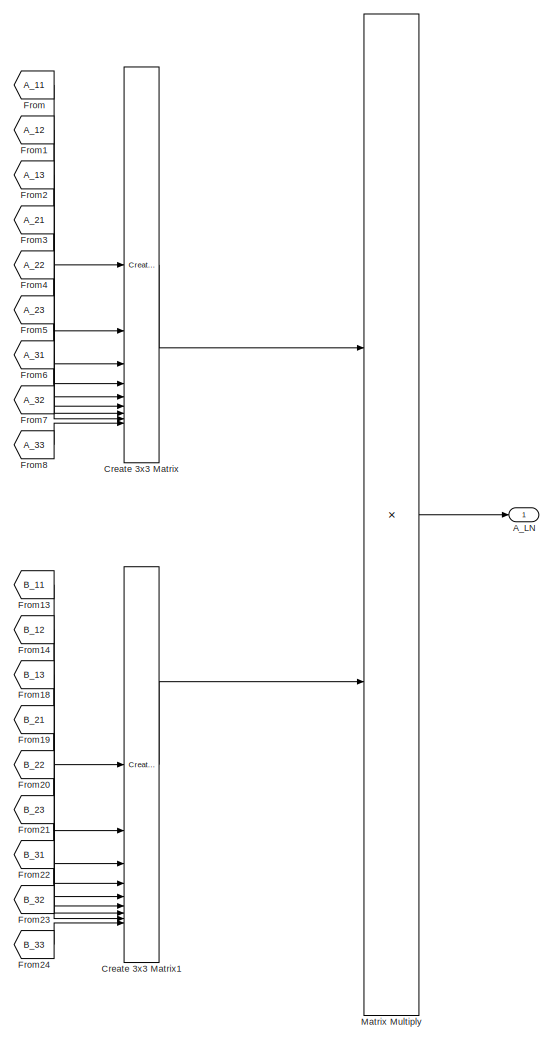
[diagram: Reference Orientation/Reference Matrix #1 - part 1/2, right side, full height]
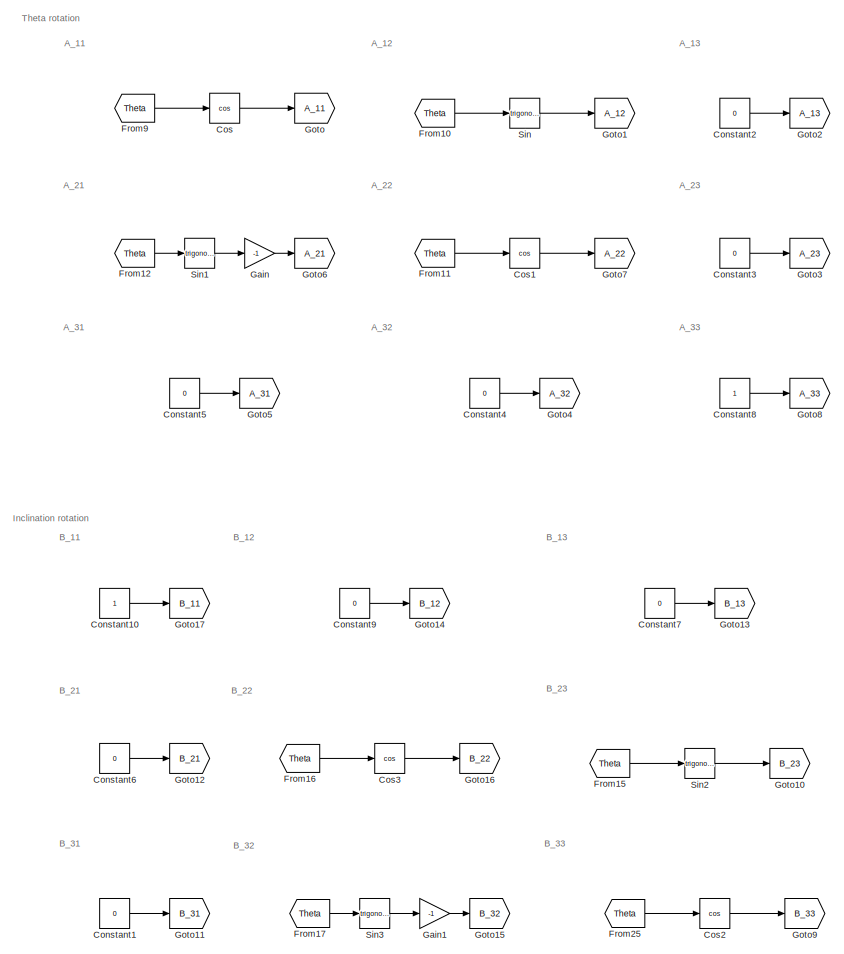
[diagram: Reference Orientation/Reference Matrix #1 - part 2/2, left side, full height]
BLOCK [SubSystem] Reference Orientation/Reference Matrix #1
BLOCK [Outport] Reference Orientation/Reference Matrix #1/A_LN
BLOCK [Constant] Reference Orientation/Reference Matrix #1/Constant1
  Value = 0
BLOCK [Constant] Reference Orientation/Reference Matrix #1/Constant10
BLOCK [Constant] Reference Orientation/Reference Matrix #1/Constant2
  Value = 0
BLOCK [Constant] Reference Orientation/Reference Matrix #1/Constant3
  Value = 0
BLOCK [Constant] Reference Orientation/Reference Matrix #1/Constant4
  Value = 0
BLOCK [Constant] Reference Orientation/Reference Matrix #1/Constant5
  Value = 0
BLOCK [Constant] Reference Orientation/Reference Matrix #1/Constant6
  Value = 0
BLOCK [Constant] Reference Orientation/Reference Matrix #1/Constant7
  Value = 0
BLOCK [Constant] Reference Orientation/Reference Matrix #1/Constant8
BLOCK [Constant] Reference Orientation/Reference Matrix #1/Constant9
  Value = 0
BLOCK [Trigonometry] Reference Orientation/Reference Matrix #1/Cos
  Operator = cos
BLOCK [Trigonometry] Reference Orientation/Reference Matrix #1/Cos1
  Operator = cos
BLOCK [Trigonometry] Reference Orientation/Reference Matrix #1/Cos2
  Operator = cos
BLOCK [Trigonometry] Reference Orientation/Reference Matrix #1/Cos3
  Operator = cos
BLOCK [Reference] Reference Orientation/Reference Matrix #1/Create 3x3 Matrix  REF=sharedutil/Create 3x3 Matrix
  LibrarySourceBlock = aerolibutil/Create 3x3 Matrix
  SourceBlock = sharedutil/Create 3x3 Matrix
  SourceType = Create 3x3 Matrix
BLOCK [Reference] Reference Orientation/Reference Matrix #1/Create 3x3 Matrix1  REF=sharedutil/Create 3x3 Matrix
  LibrarySourceBlock = aerolibutil/Create 3x3 Matrix
  SourceBlock = sharedutil/Create 3x3 Matrix
  SourceType = Create 3x3 Matrix
BLOCK [From] Reference Orientation/Reference Matrix #1/From
  GotoTag = A_11
BLOCK [From] Reference Orientation/Reference Matrix #1/From1
  GotoTag = A_12
BLOCK [From] Reference Orientation/Reference Matrix #1/From10
  GotoTag = Theta
  TagVisibility = global
BLOCK [From] Reference Orientation/Reference Matrix #1/From11
  GotoTag = Theta
  TagVisibility = global
BLOCK [From] Reference Orientation/Reference Matrix #1/From12
  GotoTag = Theta
  TagVisibility = global
BLOCK [From] Reference Orientation/Reference Matrix #1/From13
  GotoTag = B_11
BLOCK [From] Reference Orientation/Reference Matrix #1/From14
  GotoTag = B_12
BLOCK [From] Reference Orientation/Reference Matrix #1/From15
  GotoTag = Theta
  TagVisibility = global
BLOCK [From] Reference Orientation/Reference Matrix #1/From16
  GotoTag = Theta
  TagVisibility = global
BLOCK [From] Reference Orientation/Reference Matrix #1/From17
  GotoTag = Theta
  TagVisibility = global
BLOCK [From] Reference Orientation/Reference Matrix #1/From18
  GotoTag = B_13
BLOCK [From] Reference Orientation/Reference Matrix #1/From19
  GotoTag = B_21
BLOCK [From] Reference Orientation/Reference Matrix #1/From2
  GotoTag = A_13
BLOCK [From] Reference Orientation/Reference Matrix #1/From20
  GotoTag = B_22
BLOCK [From] Reference Orientation/Reference Matrix #1/From21
  GotoTag = B_23
BLOCK [From] Reference Orientation/Reference Matrix #1/From22
  GotoTag = B_31
BLOCK [From] Reference Orientation/Reference Matrix #1/From23
  GotoTag = B_32
BLOCK [From] Reference Orientation/Reference Matrix #1/From24
  GotoTag = B_33
BLOCK [From] Reference Orientation/Reference Matrix #1/From25
  GotoTag = Theta
  TagVisibility = global
BLOCK [From] Reference Orientation/Reference Matrix #1/From3
  GotoTag = A_21
BLOCK [From] Reference Orientation/Reference Matrix #1/From4
  GotoTag = A_22
BLOCK [From] Reference Orientation/Reference Matrix #1/From5
  GotoTag = A_23
BLOCK [From] Reference Orientation/Reference Matrix #1/From6
  GotoTag = A_31
BLOCK [From] Reference Orientation/Reference Matrix #1/From7
  GotoTag = A_32
BLOCK [From] Reference Orientation/Reference Matrix #1/From8
  GotoTag = A_33
BLOCK [From] Reference Orientation/Reference Matrix #1/From9
  GotoTag = Theta
  TagVisibility = global
BLOCK [Gain] Reference Orientation/Reference Matrix #1/Gain
  Gain = -1
BLOCK [Gain] Reference Orientation/Reference Matrix #1/Gain1
  Gain = -1
BLOCK [Goto] Reference Orientation/Reference Matrix #1/Goto
  GotoTag = A_11
BLOCK [Goto] Reference Orientation/Reference Matrix #1/Goto1
  GotoTag = A_12
BLOCK [Goto] Reference Orientation/Reference Matrix #1/Goto10
  GotoTag = B_23
BLOCK [Goto] Reference Orientation/Reference Matrix #1/Goto11
  GotoTag = B_31
BLOCK [Goto] Reference Orientation/Reference Matrix #1/Goto12
  GotoTag = B_21
BLOCK [Goto] Reference Orientation/Reference Matrix #1/Goto13
  GotoTag = B_13
BLOCK [Goto] Reference Orientation/Reference Matrix #1/Goto14
  GotoTag = B_12
BLOCK [Goto] Reference Orientation/Reference Matrix #1/Goto15
  GotoTag = B_32
BLOCK [Goto] Reference Orientation/Reference Matrix #1/Goto16
  GotoTag = B_22
BLOCK [Goto] Reference Orientation/Reference Matrix #1/Goto17
  GotoTag = B_11
BLOCK [Goto] Reference Orientation/Reference Matrix #1/Goto2
  GotoTag = A_13
BLOCK [Goto] Reference Orientation/Reference Matrix #1/Goto3
  GotoTag = A_23
BLOCK [Goto] Reference Orientation/Reference Matrix #1/Goto4
  GotoTag = A_32
BLOCK [Goto] Reference Orientation/Reference Matrix #1/Goto5
  GotoTag = A_31
BLOCK [Goto] Reference Orientation/Reference Matrix #1/Goto6
  GotoTag = A_21
BLOCK [Goto] Reference Orientation/Reference Matrix #1/Goto7
  GotoTag = A_22
BLOCK [Goto] Reference Orientation/Reference Matrix #1/Goto8
  GotoTag = A_33
BLOCK [Goto] Reference Orientation/Reference Matrix #1/Goto9
  GotoTag = B_33
BLOCK [Product] Reference Orientation/Reference Matrix #1/Matrix Multiply
  Multiplication = Matrix(*)
BLOCK [Trigonometry] Reference Orientation/Reference Matrix #1/Sin
BLOCK [Trigonometry] Reference Orientation/Reference Matrix #1/Sin1
BLOCK [Trigonometry] Reference Orientation/Reference Matrix #1/Sin2
BLOCK [Trigonometry] Reference Orientation/Reference Matrix #1/Sin3
BLOCK [Scope] Reference Orientation/Scope
  Floating = off
  NumInputPorts = 1
  ScopeSpecificationString = Simulink.scopes.TimeScopeBlockCfg('CurrentConfiguration', extmgr.ConfigurationSet(extmgr.Configuration('Core','General UI',true),extmgr.Configuration('Core','Source UI',true),extmgr.Configuration('Sources','WiredSimulink',true,'DataLoggingVariableName','ScopeData1'),extmgr.Configuration('Visuals','Time Domain',true,'SerializedDisplays',{struct('MinYLimReal','-0.1296','MaxYLimReal','1.12551','YLabe...<+1428ch>
BLOCK [ToWorkspace] Reference Orientation/To Workspace
  FixptAsFi = on
  MaxDataPoints = inf
  SampleTime = -1
  VariableName = err
BLOCK [Math] Reference Orientation/Transpose
  Operator = transpose
BLOCK [SubSystem] Subsystem
BLOCK [Trigonometry] Subsystem/Acos
  Operator = acos
BLOCK [Reference] Subsystem/Cartesian to Spherical  REF=simulink_extras/Transformations/Cartesian to
Spherical
  SourceBlock = simulink_extras/Transformations/Cartesian to\nSpherical
  SourceType = Cart2Sph
BLOCK [Constant] Subsystem/Constant
  Value = HS.Misalignment_matrix
BLOCK [Constant] Subsystem/Constant1
  Value = [1,0,0]
BLOCK [Constant] Subsystem/Constant2
  Value = [0;0;0]
BLOCK [Reference] Subsystem/Degrees to Radians2  REF=simulink_extras/Transformations/Degrees to
Radians
  SourceBlock = simulink_extras/Transformations/Degrees to\nRadians
  SourceType = DegreesToRadians
BLOCK [Reference] Subsystem/Degrees to Radians3  REF=simulink_extras/Transformations/Degrees to
Radians
  SourceBlock = simulink_extras/Transformations/Degrees to\nRadians
  SourceType = DegreesToRadians
BLOCK [Demux] Subsystem/Demux
  Outputs = 3
BLOCK [DotProduct] Subsystem/Dot Product
  OutDataTypeStr = Inherit: Inherit via internal rule
BLOCK [From] Subsystem/From
  GotoTag = r_B
  TagVisibility = global
BLOCK [Product] Subsystem/Matrix Multiply1
  Multiplication = Matrix(*)
BLOCK [Mux] Subsystem/Mux
  DisplayOption = bar
  Inputs = 3
BLOCK [SubSystem] Subsystem/Norm
BLOCK [Demux] Subsystem/Norm/Demux
  Outputs = 3
BLOCK [Inport] Subsystem/Norm/In1
BLOCK [Outport] Subsystem/Norm/Out1
BLOCK [Math] Subsystem/Norm/Square
  Operator = square
BLOCK [Sqrt] Subsystem/Norm/Square Root
BLOCK [Math] Subsystem/Norm/Square1
  Operator = square
BLOCK [Math] Subsystem/Norm/Square2
  Operator = square
BLOCK [Sum] Subsystem/Norm/Sum
  IconShape = rectangular
  Inputs = +++
BLOCK [SubSystem] Subsystem/Norm1
BLOCK [Demux] Subsystem/Norm1/Demux
  Outputs = 3
BLOCK [Inport] Subsystem/Norm1/In1
BLOCK [Outport] Subsystem/Norm1/Out1
BLOCK [Math] Subsystem/Norm1/Square
  Operator = square
BLOCK [Sqrt] Subsystem/Norm1/Square Root
BLOCK [Math] Subsystem/Norm1/Square1
  Operator = square
BLOCK [Math] Subsystem/Norm1/Square2
  Operator = square
BLOCK [Sum] Subsystem/Norm1/Sum
  IconShape = rectangular
  Inputs = +++
BLOCK [Product] Subsystem/Product
  Inputs = *//
BLOCK [Reference] Subsystem/Radians to Degrees2  REF=simulink_extras/Transformations/Radians
to Degrees
  SourceBlock = simulink_extras/Transformations/Radians\nto Degrees
  SourceType = RadiansToDegrees
BLOCK [Reference] Subsystem/Radians to Degrees3  REF=simulink_extras/Transformations/Radians
to Degrees
  SourceBlock = simulink_extras/Transformations/Radians\nto Degrees
  SourceType = RadiansToDegrees
BLOCK [Scope] Subsystem/Scope
  Floating = off
  NumInputPorts = 1
  ScopeSpecificationString = Simulink.scopes.TimeScopeBlockCfg('CurrentConfiguration', extmgr.ConfigurationSet(extmgr.Configuration('Core','General UI',true),extmgr.Configuration('Core','Source UI',true),extmgr.Configuration('Sources','WiredSimulink',true,'DataLoggingVariableName','ScopeData6'),extmgr.Configuration('Visuals','Time Domain',true,'SerializedDisplays',{struct('MinYLimReal','-8550739.94496','MaxYLimReal','8553415....<+1603ch>
BLOCK [Scope] Subsystem/Scope1
  Floating = off
  NumInputPorts = 1
  ScopeSpecificationString = Simulink.scopes.TimeScopeBlockCfg('CurrentConfiguration', extmgr.ConfigurationSet(extmgr.Configuration('Core','General UI',true),extmgr.Configuration('Core','Source UI',true),extmgr.Configuration('Sources','WiredSimulink',true,'DataLoggingVariableName','ScopeData1'),extmgr.Configuration('Visuals','Time Domain',true,'SerializedDisplays',{struct('MinYLimReal','-8552825.9198','MaxYLimReal','8552853.3...<+1681ch>
BLOCK [Scope] Subsystem/Scope2
  Floating = off
  NameLocation = right
  NumInputPorts = 1
  ScopeSpecificationString = Simulink.scopes.TimeScopeBlockCfg('CurrentConfiguration', extmgr.ConfigurationSet(extmgr.Configuration('Core','General UI',true),extmgr.Configuration('Core','Source UI',true),extmgr.Configuration('Sources','WiredSimulink',true,'DataLoggingVariableName','ScopeData2'),extmgr.Configuration('Visuals','Time Domain',true,'SerializedDisplays',{struct('MinYLimReal','-0.37114','MaxYLimReal','3.34025','YLab...<+1396ch>
BLOCK [Reference] Subsystem/Spherical to Cartesian  REF=simulink_extras/Transformations/Spherical to
Cartesian
  SourceBlock = simulink_extras/Transformations/Spherical to\nCartesian
  SourceType = Sph2Cart
BLOCK [SubSystem] Subsystem/Subsystem2
BLOCK [Abs] Subsystem/Subsystem2/Abs
  SaturateOnIntegerOverflow = off
BLOCK [Gain] Subsystem/Subsystem2/Gain
  Gain = 1e-4
BLOCK [Gain] Subsystem/Subsystem2/Gain1
  Gain = 1e-4
BLOCK [Gain] Subsystem/Subsystem2/Gain2
  Gain = 1e-4
BLOCK [Inport] Subsystem/Subsystem2/In1
BLOCK [Outport] Subsystem/Subsystem2/Out1
BLOCK [Math] Subsystem/Subsystem2/Square
  Operator = square
BLOCK [Sum] Subsystem/Subsystem2/Sum
  IconShape = rectangular
  Inputs = ++++
BLOCK [SubSystem] Subsystem/Subsystem3
BLOCK [Abs] Subsystem/Subsystem3/Abs
  SaturateOnIntegerOverflow = off
BLOCK [Gain] Subsystem/Subsystem3/Gain
  Gain = 1e-4
BLOCK [Gain] Subsystem/Subsystem3/Gain1
  Gain = 1e-4
BLOCK [Gain] Subsystem/Subsystem3/Gain2
  Gain = 1e-4
BLOCK [Inport] Subsystem/Subsystem3/In1
BLOCK [Outport] Subsystem/Subsystem3/Out1
BLOCK [Math] Subsystem/Subsystem3/Square
  Operator = square
BLOCK [Sum] Subsystem/Subsystem3/Sum
  IconShape = rectangular
  Inputs = ++++
BLOCK [Switch] Subsystem/Switch
  InputSameDT = off
  SaturateOnIntegerOverflow = off
  Threshold = HS.FOV/2
BLOCK [SubSystem] Subsystem1
BLOCK [Reference] Subsystem1/Determinant of 3x3 Matrix  REF=sharedutil/Determinant of
3x3 Matrix
  LibrarySourceBlock = aerolibutil/Determinant of\n3x3 Matrix
  SourceBlock = sharedutil/Determinant of\n3x3 Matrix
  SourceType = Determinant of 3x3 Matrix
BLOCK [Reference] Subsystem1/Extract Diagonal  REF=matrix_library/Extract Diagonal
  LibrarySourceBlock = simulink/Matrix\nOperations/Extract Diagonal
  SourceBlock = matrix_library/Extract Diagonal
  SourceType = Extract Diagonal
BLOCK [From] Subsystem1/From
  GotoTag = r_B
  TagVisibility = global
BLOCK [From] Subsystem1/From1
  GotoTag = r_N
  TagVisibility = global
BLOCK [From] Subsystem1/From2
  GotoTag = S_B
  TagVisibility = global
BLOCK [From] Subsystem1/From3
  GotoTag = S_N
  TagVisibility = global
BLOCK [From] Subsystem1/From4
  GotoTag = DCM
  TagVisibility = global
BLOCK [Gain] Subsystem1/Gain
  Gain = eye(3)
BLOCK [Gain] Subsystem1/Gain1
  Gain = alpha_1
BLOCK [Gain] Subsystem1/Gain2
  Gain = alpha_2
BLOCK [SubSystem] Subsystem1/MATLAB Function
  ErrorFcn = Stateflow.Translate.translate
  LibrarySourceBlock = simulink/User-Defined\nFunctions/MATLAB Function
  PermitHierarchicalResolution = ExplicitOnly
  SFBlockType = MATLAB Function
  TreatAsAtomicUnit = on
BLOCK [Demux] Subsystem1/MATLAB Function/ Demux 
  Outputs = 1
BLOCK [S-Function] Subsystem1/MATLAB Function/ SFunction 
  EnableBusSupport = on
  FunctionName = sf_sfun
  PortCounts = [1 2]
  SFcnIsStateOwnerBlock = off
  SFunctionDeploymentMode = off
  Tag = Stateflow S-Function 2
BLOCK [Terminator] Subsystem1/MATLAB Function/ Terminator 
BLOCK [Inport] Subsystem1/MATLAB Function/K
BLOCK [Outport] Subsystem1/MATLAB Function/max_eigenvector
BLOCK [SubSystem] Subsystem1/MATLAB Function1
  ErrorFcn = Stateflow.Translate.translate
  LibrarySourceBlock = simulink/User-Defined\nFunctions/MATLAB Function
  PermitHierarchicalResolution = ExplicitOnly
  SFBlockType = MATLAB Function
  TreatAsAtomicUnit = on
BLOCK [Demux] Subsystem1/MATLAB Function1/ Demux 
  Outputs = 1
BLOCK [S-Function] Subsystem1/MATLAB Function1/ SFunction 
  EnableBusSupport = on
  FunctionName = sf_sfun
  PortCounts = [1 2]
  SFcnIsStateOwnerBlock = off
  SFunctionDeploymentMode = off
  Tag = Stateflow S-Function 1
BLOCK [Terminator] Subsystem1/MATLAB Function1/ Terminator 
BLOCK [Outport] Subsystem1/MATLAB Function1/DCM
BLOCK [Inport] Subsystem1/MATLAB Function1/q
BLOCK [Concatenate] Subsystem1/Matrix Concatenate
  Mode = Multidimensional array
BLOCK [Concatenate] Subsystem1/Matrix Concatenate1
  ConcatenateDimension = 2
  Mode = Multidimensional array
  NameLocation = left
BLOCK [Product] Subsystem1/Matrix Multiply
  Multiplication = Matrix(*)
BLOCK [Product] Subsystem1/Matrix Multiply1
  Multiplication = Matrix(*)
BLOCK [Mux] Subsystem1/Mux
  DisplayOption = bar
  Inputs = 3
BLOCK [Mux] Subsystem1/Mux1
  DisplayOption = bar
  Inputs = 2
  NameLocation = left
BLOCK [Scope] Subsystem1/Scope
  Floating = off
  NumInputPorts = 1
  ScopeSpecificationString = Simulink.scopes.TimeScopeBlockCfg('CurrentConfiguration', extmgr.ConfigurationSet(extmgr.Configuration('Core','General UI',true),extmgr.Configuration('Core','Source UI',true),extmgr.Configuration('Sources','WiredSimulink',true,'DataLoggingVariableName','ScopeData5'),extmgr.Configuration('Visuals','Time Domain',true,'SerializedDisplays',{struct('MinYLimReal','-0.125','MaxYLimReal','1.125','YLabelRe...<+1439ch>
BLOCK [Scope] Subsystem1/Scope1
  Floating = off
  NumInputPorts = 2
  ScopeSpecificationString = Simulink.scopes.TimeScopeBlockCfg('CurrentConfiguration', extmgr.ConfigurationSet(extmgr.Configuration('Core','General UI',true),extmgr.Configuration('Core','Source UI',true),extmgr.Configuration('Sources','WiredSimulink',true,'DataLoggingVariableName','ScopeData6'),extmgr.Configuration('Visuals','Time Domain',true,'SerializedDisplays',{struct('MinYLimReal','-1.25','MaxYLimReal','1.25','YLabelReal...<+3354ch>
BLOCK [Scope] Subsystem1/Scope2
  Floating = off
  NumInputPorts = 1
  ScopeSpecificationString = Simulink.scopes.TimeScopeBlockCfg('CurrentConfiguration', extmgr.ConfigurationSet(extmgr.Configuration('Core','General UI',true),extmgr.Configuration('Core','Source UI',true),extmgr.Configuration('Sources','WiredSimulink',true,'DataLoggingVariableName','ScopeData7'),extmgr.Configuration('Visuals','Time Domain',true),extmgr.Configuration('Tools','Plot Navigation',true),extmgr.Configuration('Tools',...<+40ch>
BLOCK [Scope] Subsystem1/Scope3
  Floating = off
  NumInputPorts = 1
  ScopeSpecificationString = Simulink.scopes.TimeScopeBlockCfg('CurrentConfiguration', extmgr.ConfigurationSet(extmgr.Configuration('Core','General UI',true),extmgr.Configuration('Core','Source UI',true),extmgr.Configuration('Sources','WiredSimulink',true,'DataLoggingVariableName','ScopeData8'),extmgr.Configuration('Visuals','Time Domain',true,'SerializedDisplays',{struct('MinYLimReal','-29360154293750.00000','MaxYLimReal','2...<+1666ch>
BLOCK [Scope] Subsystem1/Scope4
  Floating = off
  NameLocation = top
  NumInputPorts = 1
  ScopeSpecificationString = Simulink.scopes.TimeScopeBlockCfg('CurrentConfiguration', extmgr.ConfigurationSet(extmgr.Configuration('Core','General UI',true),extmgr.Configuration('Core','Source UI',true),extmgr.Configuration('Sources','WiredSimulink',true,'DataLoggingVariableName','ScopeData9'),extmgr.Configuration('Visuals','Time Domain',true,'SerializedDisplays',{struct('MinYLimReal','-29360154293750.00000','MaxYLimReal','2...<+1562ch>
BLOCK [Scope] Subsystem1/Scope5
  Floating = off
  NameLocation = left
  NumInputPorts = 1
  ScopeSpecificationString = Simulink.scopes.TimeScopeBlockCfg('CurrentConfiguration', extmgr.ConfigurationSet(extmgr.Configuration('Core','General UI',true),extmgr.Configuration('Core','Source UI',true),extmgr.Configuration('Sources','WiredSimulink',true,'DataLoggingVariableName','ScopeData10'),extmgr.Configuration('Visuals','Time Domain',true,'SerializedDisplays',{struct('MinYLimReal','-28760077490886.1875','MaxYLimReal','2...<+1475ch>
BLOCK [Scope] Subsystem1/Scope6
  Floating = off
  NumInputPorts = 1
  ScopeSpecificationString = Simulink.scopes.TimeScopeBlockCfg('CurrentConfiguration', extmgr.ConfigurationSet(extmgr.Configuration('Core','General UI',true),extmgr.Configuration('Core','Source UI',true),extmgr.Configuration('Sources','WiredSimulink',true,'DataLoggingVariableName','ScopeData3'),extmgr.Configuration('Visuals','Time Domain',true,'SerializedDisplays',{struct('MinYLimReal','-1.24841','MaxYLimReal','1.24982','YLab...<+1564ch>
BLOCK [Selector] Subsystem1/Selector
  IndexOptions = Index vector (dialog),Index vector (dialog)
  Indices = 2,3
  InputPortWidth = 3
  NumberOfDimensions = 2
  OutputSizes = 1,1
BLOCK [Selector] Subsystem1/Selector1
  IndexOptions = Index vector (dialog),Index vector (dialog)
  Indices = 3,1
  InputPortWidth = 3
  NumberOfDimensions = 2
  OutputSizes = 1,1
BLOCK [Selector] Subsystem1/Selector2
  IndexOptions = Index vector (dialog),Index vector (dialog)
  Indices = 1,2
  InputPortWidth = 3
  NumberOfDimensions = 2
  OutputSizes = 1,1
BLOCK [Sum] Subsystem1/Sum
BLOCK [Sum] Subsystem1/Sum1
  Inputs = |++
BLOCK [Sum] Subsystem1/Sum2
  Inputs = +
BLOCK [Sum] Subsystem1/Sum3
  Inputs = -+|
BLOCK [Sum] Subsystem1/Sum4
  Inputs = |-+
BLOCK [Math] Subsystem1/Transpose
  Operator = transpose
BLOCK [Math] Subsystem1/Transpose1
  Operator = transpose
BLOCK [Math] Subsystem1/Transpose2
  Operator = transpose
BLOCK [Math] Subsystem1/Transpose3
  Operator = transpose
ANNOTATION (root): PERTURBANCES
ANNOTATION  Magnetic Perturbance : Magnetic Field
ANNOTATION  Magnetic Perturbance : Magnetic Torque
ANNOTATION  SRP Perturbance: Baricenters positions
ANNOTATION  SRP Perturbance: Check if surface is seen by sun
ANNOTATION  SRP Perturbance: Force
ANNOTATION  SRP Perturbance: Moments
ANNOTATION  SRP Perturbance: SUN RADIATION PERTURBATION
ANNOTATION  SRP Perturbance: TENTATIVO DI OTTIMIZZAZIONE
ANNOTATION  SRP Perturbance: vector_Surface_Matrix lo devo trasporre nel matlab
ANNOTATION Celestial and Orbital Mechanic: 2 BODY PROBLEM
ANNOTATION Celestial and Orbital Mechanic: Normalizzation
ANNOTATION Celestial and Orbital Mechanic: RADIUS
ANNOTATION Celestial and Orbital Mechanic: SUN DYNAMIC
ANNOTATION Celestial and Orbital Mechanic: Scopes
ANNOTATION Celestial and Orbital Mechanic: THETA
ANNOTATION Celestial and Orbital Mechanic: possible to wrap state between 0 and 2*pi...is it necessary???
ANNOTATION DCM: LOGIC
ANNOTATION DCM: SCOPES
ANNOTATION DCM: TEST
ANNOTATION Dynamics: Logic
ANNOTATION Dynamics: Scopes
ANNOTATION Dynamics: TEST
ANNOTATION Gravity Gradient Perturbation: Gravity Gradient Perturbation
ANNOTATION Reference Orientation/Reference Matrix #1: A_11
ANNOTATION Reference Orientation/Reference Matrix #1: A_12
ANNOTATION Reference Orientation/Reference Matrix #1: A_13
ANNOTATION Reference Orientation/Reference Matrix #1: A_21
ANNOTATION Reference Orientation/Reference Matrix #1: A_22
ANNOTATION Reference Orientation/Reference Matrix #1: A_23
ANNOTATION Reference Orientation/Reference Matrix #1: A_31
ANNOTATION Reference Orientation/Reference Matrix #1: A_32
ANNOTATION Reference Orientation/Reference Matrix #1: A_33
ANNOTATION Reference Orientation/Reference Matrix #1: B_11
ANNOTATION Reference Orientation/Reference Matrix #1: B_12
ANNOTATION Reference Orientation/Reference Matrix #1: B_13
ANNOTATION Reference Orientation/Reference Matrix #1: B_21
ANNOTATION Reference Orientation/Reference Matrix #1: B_22
ANNOTATION Reference Orientation/Reference Matrix #1: B_23
ANNOTATION Reference Orientation/Reference Matrix #1: B_31
ANNOTATION Reference Orientation/Reference Matrix #1: B_32
ANNOTATION Reference Orientation/Reference Matrix #1: B_33
ANNOTATION Reference Orientation/Reference Matrix #1: Inclination rotation
ANNOTATION Reference Orientation/Reference Matrix #1: Theta rotation
LINE  Magnetic Perturbance /Constant1:1 ->  Magnetic Perturbance /Power:2
LINE  Magnetic Perturbance /Constant2:1 ->  Magnetic Perturbance /Power1:2
LINE  Magnetic Perturbance /Constant3:1 ->  Magnetic Perturbance /Cross Product:1
LINE  Magnetic Perturbance /Constant:1 ->  Magnetic Perturbance /Power1:1
NET  Magnetic Perturbance /Cross Product:1 ->  Magnetic Perturbance /Goto:1,  Magnetic Perturbance /Magnetic_Perturbation:1
LINE  Magnetic Perturbance /Dot Product:1 ->  Magnetic Perturbance /Product1:1
LINE  Magnetic Perturbance /From1:1 ->  Magnetic Perturbance /Normalize Vector:1
LINE  Magnetic Perturbance /From2:1 ->  Magnetic Perturbance /Matrix Multiply:1
NET  Magnetic Perturbance /From3:1 ->  Magnetic Perturbance /Scope:1,  Magnetic Perturbance /To Workspace:1
NET  Magnetic Perturbance /From4:1 ->  Magnetic Perturbance /Scope1:1,  Magnetic Perturbance /To Workspace1:1
NET  Magnetic Perturbance /From5:1 ->  Magnetic Perturbance /Scope2:1,  Magnetic Perturbance /To Workspace2:1
LINE  Magnetic Perturbance /From:1 ->  Magnetic Perturbance /Norm:1
LINE  Magnetic Perturbance /Gain1:1 ->  Magnetic Perturbance /Product:2
LINE  Magnetic Perturbance /Gain:1 ->  Magnetic Perturbance /Sum:2
LINE  Magnetic Perturbance /H0/Constant1:1 ->  Magnetic Perturbance /H0/Square1:1
LINE  Magnetic Perturbance /H0/Constant2:1 ->  Magnetic Perturbance /H0/Square2:1
LINE  Magnetic Perturbance /H0/Constant:1 ->  Magnetic Perturbance /H0/Square:1
LINE  Magnetic Perturbance /H0/Sqrt:1 ->  Magnetic Perturbance /H0/H0:1
LINE  Magnetic Perturbance /H0/Square1:1 ->  Magnetic Perturbance /H0/Sum:2
LINE  Magnetic Perturbance /H0/Square2:1 ->  Magnetic Perturbance /H0/Sum:3
LINE  Magnetic Perturbance /H0/Square:1 ->  Magnetic Perturbance /H0/Sum:1
LINE  Magnetic Perturbance /H0/Sum:1 ->  Magnetic Perturbance /H0/Sqrt:1
LINE  Magnetic Perturbance /H0:1 ->  Magnetic Perturbance /Gain1:1
NET  Magnetic Perturbance /Matrix Multiply:1 ->  Magnetic Perturbance /Cross Product:2,  Magnetic Perturbance /Goto1:1
LINE  Magnetic Perturbance /Norm/Demux:1 ->  Magnetic Perturbance /Norm/Square:1
LINE  Magnetic Perturbance /Norm/Demux:2 ->  Magnetic Perturbance /Norm/Square1:1
LINE  Magnetic Perturbance /Norm/Demux:3 ->  Magnetic Perturbance /Norm/Square2:1
LINE  Magnetic Perturbance /Norm/In1:1 ->  Magnetic Perturbance /Norm/Demux:1
LINE  Magnetic Perturbance /Norm/Square Root:1 ->  Magnetic Perturbance /Norm/Out1:1
LINE  Magnetic Perturbance /Norm/Square1:1 ->  Magnetic Perturbance /Norm/Sum:2
LINE  Magnetic Perturbance /Norm/Square2:1 ->  Magnetic Perturbance /Norm/Sum:3
LINE  Magnetic Perturbance /Norm/Square:1 ->  Magnetic Perturbance /Norm/Sum:1
LINE  Magnetic Perturbance /Norm/Sum:1 ->  Magnetic Perturbance /Norm/Square Root:1
LINE  Magnetic Perturbance /Norm:1 ->  Magnetic Perturbance /Power:1
NET  Magnetic Perturbance /Normalize Vector:1 ->  Magnetic Perturbance /Dot Product:2,  Magnetic Perturbance /Product1:2
LINE  Magnetic Perturbance /Power1:1 ->  Magnetic Perturbance /Product:1
LINE  Magnetic Perturbance /Power:1 ->  Magnetic Perturbance /Product:3
LINE  Magnetic Perturbance /Product1:1 ->  Magnetic Perturbance /Gain:1
NET  Magnetic Perturbance /Product2:1 ->  Magnetic Perturbance /Goto2:1,  Magnetic Perturbance /Matrix Multiply:2
LINE  Magnetic Perturbance /Product:1 ->  Magnetic Perturbance /Product2:1
LINE  Magnetic Perturbance /Sum:1 ->  Magnetic Perturbance /Product2:2
LINE  Magnetic Perturbance /m/Clock:1 ->  Magnetic Perturbance /m/Product:2
LINE  Magnetic Perturbance /m/Constant1:1 ->  Magnetic Perturbance /m/Product:1
NET  Magnetic Perturbance /m/Constant:1 ->  Magnetic Perturbance /m/Cos1:1,  Magnetic Perturbance /m/Sin:1
LINE  Magnetic Perturbance /m/Cos1:1 ->  Magnetic Perturbance /m/Mux:3
LINE  Magnetic Perturbance /m/Cos:1 ->  Magnetic Perturbance /m/Product1:2
LINE  Magnetic Perturbance /m/Mux:1 ->  Magnetic Perturbance /m/m:1
LINE  Magnetic Perturbance /m/Product1:1 ->  Magnetic Perturbance /m/Mux:1
LINE  Magnetic Perturbance /m/Product2:1 ->  Magnetic Perturbance /m/Mux:2
NET  Magnetic Perturbance /m/Product:1 ->  Magnetic Perturbance /m/Cos:1,  Magnetic Perturbance /m/Sin1:1
LINE  Magnetic Perturbance /m/Sin1:1 ->  Magnetic Perturbance /m/Product2:2
NET  Magnetic Perturbance /m/Sin:1 ->  Magnetic Perturbance /m/Product1:1,  Magnetic Perturbance /m/Product2:1
NET  Magnetic Perturbance /m:1 ->  Magnetic Perturbance /Dot Product:1,  Magnetic Perturbance /Sum:1
LINE  Magnetic Perturbance :1 -> Dynamics:3
LINE  SRP Perturbance/Constant10:1 ->  SRP Perturbance/Relational Operator:2
NET  SRP Perturbance/Constant13:1 ->  SRP Perturbance/Selector3:1,  SRP Perturbance/Selector4:1,  SRP Perturbance/Selector5:1
LINE  SRP Perturbance/Constant14:1 ->  SRP Perturbance/Product16:1
LINE  SRP Perturbance/Constant15:1 ->  SRP Perturbance/Product16:2
LINE  SRP Perturbance/Constant16:1 ->  SRP Perturbance/Relational Operator1:2
LINE  SRP Perturbance/Constant18:1 ->  SRP Perturbance/Transpose9:1
LINE  SRP Perturbance/Constant19:1 ->  SRP Perturbance/Sum6:1
LINE  SRP Perturbance/Constant1:1 ->  SRP Perturbance/Product1:2
LINE  SRP Perturbance/Constant20:1 ->  SRP Perturbance/Sum6:2
LINE  SRP Perturbance/Constant21:1 ->  SRP Perturbance/Gain2:1
LINE  SRP Perturbance/Constant22:1 ->  SRP Perturbance/Transpose10:1
LINE  SRP Perturbance/Constant23:1 ->  SRP Perturbance/Gain3:1
LINE  SRP Perturbance/Constant24:1 ->  SRP Perturbance/Transpose16:1
LINE  SRP Perturbance/Constant25:1 ->  SRP Perturbance/Matrix Multiply8:2
LINE  SRP Perturbance/Constant2:1 ->  SRP Perturbance/Matrix Multiply:2
LINE  SRP Perturbance/Constant3:1 ->  SRP Perturbance/Sum:1
LINE  SRP Perturbance/Constant4:1 ->  SRP Perturbance/Sum:2
LINE  SRP Perturbance/Constant5:1 ->  SRP Perturbance/Gain:1
LINE  SRP Perturbance/Constant6:1 ->  SRP Perturbance/Matrix Multiply1:2
LINE  SRP Perturbance/Constant7:1 ->  SRP Perturbance/Gain1:1
LINE  SRP Perturbance/Constant8:1 ->  SRP Perturbance/Transpose7:1
LINE  SRP Perturbance/Constant9:1 ->  SRP Perturbance/Matrix Multiply3:2
LINE  SRP Perturbance/Constant:1 ->  SRP Perturbance/Product1:1
LINE  SRP Perturbance/From10:1 ->  SRP Perturbance/Product12:2
LINE  SRP Perturbance/From11:1 ->  SRP Perturbance/Product11:1
LINE  SRP Perturbance/From12:1 ->  SRP Perturbance/Product11:2
LINE  SRP Perturbance/From13:1 ->  SRP Perturbance/Product14:2
LINE  SRP Perturbance/From14:1 ->  SRP Perturbance/Product13:1
LINE  SRP Perturbance/From15:1 ->  SRP Perturbance/Product13:2
LINE  SRP Perturbance/From16:1 ->  SRP Perturbance/Product14:1
LINE  SRP Perturbance/From17:1 ->  SRP Perturbance/Scope:1
LINE  SRP Perturbance/From18:1 ->  SRP Perturbance/Scope1:1
LINE  SRP Perturbance/From1:1 ->  SRP Perturbance/Matrix Multiply2:1
LINE  SRP Perturbance/From20:1 ->  SRP Perturbance/Matrix Multiply5:2
LINE  SRP Perturbance/From21:1 ->  SRP Perturbance/Matrix Multiply7:2
LINE  SRP Perturbance/From22:1 ->  SRP Perturbance/Matrix Multiply6:2
LINE  SRP Perturbance/From23:1 ->  SRP Perturbance/Transpose13:1
NET  SRP Perturbance/From24:1 ->  SRP Perturbance/Scope4:1,  SRP Perturbance/To Workspace1:1
LINE  SRP Perturbance/From2:1 ->  SRP Perturbance/Transpose1:1
LINE  SRP Perturbance/From3:1 ->  SRP Perturbance/Transpose4:1
LINE  SRP Perturbance/From5:1 ->  SRP Perturbance/Product9:1
LINE  SRP Perturbance/From6:1 ->  SRP Perturbance/Product9:2
LINE  SRP Perturbance/From7:1 ->  SRP Perturbance/Product10:1
LINE  SRP Perturbance/From8:1 ->  SRP Perturbance/Product10:2
LINE  SRP Perturbance/From9:1 ->  SRP Perturbance/Product12:1
LINE  SRP Perturbance/From:1 ->  SRP Perturbance/Transpose:1
LINE  SRP Perturbance/Gain1:1 ->  SRP Perturbance/Sum2:2
LINE  SRP Perturbance/Gain2:1 ->  SRP Perturbance/Product19:1
LINE  SRP Perturbance/Gain3:1 ->  SRP Perturbance/Sum8:2
LINE  SRP Perturbance/Gain:1 ->  SRP Perturbance/Product4:1
LINE  SRP Perturbance/Matrix Concatenate1:1 ->  SRP Perturbance/Product2:1
LINE  SRP Perturbance/Matrix Concatenate2:1 ->  SRP Perturbance/Transpose8:1
NET  SRP Perturbance/Matrix Concatenate3:1 ->  SRP Perturbance/Goto7:1,  SRP Perturbance/Selector6:1,  SRP Perturbance/Selector7:1,  SRP Perturbance/Selector8:1
LINE  SRP Perturbance/Matrix Concatenate4:1 ->  SRP Perturbance/Product20:1
LINE  SRP Perturbance/Matrix Concatenate5:1 ->  SRP Perturbance/Product17:1
LINE  SRP Perturbance/Matrix Concatenate6:1 ->  SRP Perturbance/Transpose17:1
LINE  SRP Perturbance/Matrix Concatenate:1 ->  SRP Perturbance/Product5:1
LINE  SRP Perturbance/Matrix Multiply1:1 ->  SRP Perturbance/Transpose3:1
LINE  SRP Perturbance/Matrix Multiply2:1 ->  SRP Perturbance/Transpose6:1
LINE  SRP Perturbance/Matrix Multiply3:1 ->  SRP Perturbance/Relational Operator:1
LINE  SRP Perturbance/Matrix Multiply5:1 ->  SRP Perturbance/Product15:2
LINE  SRP Perturbance/Matrix Multiply6:1 ->  SRP Perturbance/Product19:2
LINE  SRP Perturbance/Matrix Multiply7:1 ->  SRP Perturbance/Sum7:1
LINE  SRP Perturbance/Matrix Multiply8:1 ->  SRP Perturbance/Relational Operator1:1
LINE  SRP Perturbance/Matrix Multiply:1 ->  SRP Perturbance/Transpose5:1
NET  SRP Perturbance/Mux:1 ->  SRP Perturbance/Goto9:1,  SRP Perturbance/SRP_Perturbation:1
LINE  SRP Perturbance/Product10:1 ->  SRP Perturbance/Sum3:1
LINE  SRP Perturbance/Product11:1 ->  SRP Perturbance/Sum4:1
LINE  SRP Perturbance/Product12:1 ->  SRP Perturbance/Sum4:2
LINE  SRP Perturbance/Product13:1 ->  SRP Perturbance/Sum5:1
LINE  SRP Perturbance/Product14:1 ->  SRP Perturbance/Sum5:2
NET  SRP Perturbance/Product15:1 ->  SRP Perturbance/Matrix Concatenate5:1,  SRP Perturbance/Matrix Concatenate5:2,  SRP Perturbance/Matrix Concatenate5:3
LINE  SRP Perturbance/Product16:1 ->  SRP Perturbance/Product15:1
LINE  SRP Perturbance/Product17:1 ->  SRP Perturbance/Product18:1
LINE  SRP Perturbance/Product18:1 ->  SRP Perturbance/Scope3:1
LINE  SRP Perturbance/Product19:1 ->  SRP Perturbance/Sum8:1
LINE  SRP Perturbance/Product1:1 ->  SRP Perturbance/Product:1
LINE  SRP Perturbance/Product20:1 ->  SRP Perturbance/Sum7:2
LINE  SRP Perturbance/Product2:1 ->  SRP Perturbance/Product3:1
NET  SRP Perturbance/Product3:1 ->  SRP Perturbance/Goto8:1,  SRP Perturbance/Selector1:1,  SRP Perturbance/Selector2:1,  SRP Perturbance/Selector:1
LINE  SRP Perturbance/Product4:1 ->  SRP Perturbance/Sum2:1
LINE  SRP Perturbance/Product5:1 ->  SRP Perturbance/Sum1:2
LINE  SRP Perturbance/Product9:1 ->  SRP Perturbance/Sum3:2
NET  SRP Perturbance/Product:1 ->  SRP Perturbance/Matrix Concatenate1:1,  SRP Perturbance/Matrix Concatenate1:2,  SRP Perturbance/Matrix Concatenate1:3
NET  SRP Perturbance/Relational Operator1:1 ->  SRP Perturbance/Matrix Concatenate6:1,  SRP Perturbance/Matrix Concatenate6:2,  SRP Perturbance/Matrix Concatenate6:3
NET  SRP Perturbance/Relational Operator:1 ->  SRP Perturbance/Matrix Concatenate2:1,  SRP Perturbance/Matrix Concatenate2:2,  SRP Perturbance/Matrix Concatenate2:3
LINE  SRP Perturbance/Selector1:1 ->  SRP Perturbance/Goto5:1
LINE  SRP Perturbance/Selector2:1 ->  SRP Perturbance/Goto6:1
LINE  SRP Perturbance/Selector3:1 ->  SRP Perturbance/Goto:1
LINE  SRP Perturbance/Selector4:1 ->  SRP Perturbance/Goto1:1
LINE  SRP Perturbance/Selector5:1 ->  SRP Perturbance/Goto2:1
LINE  SRP Perturbance/Selector6:1 ->  SRP Perturbance/Sum10:1
LINE  SRP Perturbance/Selector7:1 ->  SRP Perturbance/Sum11:1
LINE  SRP Perturbance/Selector8:1 ->  SRP Perturbance/Sum12:1
LINE  SRP Perturbance/Selector:1 ->  SRP Perturbance/Goto4:1
LINE  SRP Perturbance/Sum10:1 ->  SRP Perturbance/Mux:1
LINE  SRP Perturbance/Sum11:1 ->  SRP Perturbance/Mux:2
LINE  SRP Perturbance/Sum12:1 ->  SRP Perturbance/Mux:3
LINE  SRP Perturbance/Sum1:1 ->  SRP Perturbance/Product2:2
NET  SRP Perturbance/Sum2:1 ->  SRP Perturbance/Matrix Concatenate:1,  SRP Perturbance/Matrix Concatenate:2,  SRP Perturbance/Matrix Concatenate:3
LINE  SRP Perturbance/Sum3:1 ->  SRP Perturbance/Matrix Concatenate3:1
LINE  SRP Perturbance/Sum4:1 ->  SRP Perturbance/Matrix Concatenate3:2
LINE  SRP Perturbance/Sum5:1 ->  SRP Perturbance/Matrix Concatenate3:3
LINE  SRP Perturbance/Sum6:1 ->  SRP Perturbance/Matrix Multiply7:1
LINE  SRP Perturbance/Sum7:1 ->  SRP Perturbance/Product17:2
NET  SRP Perturbance/Sum8:1 ->  SRP Perturbance/Matrix Concatenate4:1,  SRP Perturbance/Matrix Concatenate4:2,  SRP Perturbance/Matrix Concatenate4:3
LINE  SRP Perturbance/Sum:1 ->  SRP Perturbance/Transpose2:1
LINE  SRP Perturbance/Transpose10:1 ->  SRP Perturbance/Matrix Multiply6:1
LINE  SRP Perturbance/Transpose13:1 ->  SRP Perturbance/Matrix Multiply8:1
LINE  SRP Perturbance/Transpose16:1 ->  SRP Perturbance/Product20:2
LINE  SRP Perturbance/Transpose17:1 ->  SRP Perturbance/Product18:2
LINE  SRP Perturbance/Transpose1:1 ->  SRP Perturbance/Matrix Multiply1:1
LINE  SRP Perturbance/Transpose2:1 ->  SRP Perturbance/Matrix Multiply2:2
LINE  SRP Perturbance/Transpose3:1 ->  SRP Perturbance/Product4:2
LINE  SRP Perturbance/Transpose4:1 ->  SRP Perturbance/Matrix Multiply3:1
LINE  SRP Perturbance/Transpose5:1 ->  SRP Perturbance/Product:2
LINE  SRP Perturbance/Transpose6:1 ->  SRP Perturbance/Sum1:1
LINE  SRP Perturbance/Transpose7:1 ->  SRP Perturbance/Product5:2
LINE  SRP Perturbance/Transpose8:1 ->  SRP Perturbance/Product3:2
LINE  SRP Perturbance/Transpose9:1 ->  SRP Perturbance/Matrix Multiply5:1
LINE  SRP Perturbance/Transpose:1 ->  SRP Perturbance/Matrix Multiply:1
LINE  SRP Perturbance:1 -> Dynamics:2
LINE Celestial and Orbital Mechanic/Clock:1 -> Celestial and Orbital Mechanic/Product6:1
LINE Celestial and Orbital Mechanic/Constant11:1 -> Celestial and Orbital Mechanic/Product7:2
LINE Celestial and Orbital Mechanic/Constant12:1 -> Celestial and Orbital Mechanic/Product6:2
LINE Celestial and Orbital Mechanic/Constant1:1 -> Celestial and Orbital Mechanic/Power:1
LINE Celestial and Orbital Mechanic/Constant2:1 -> Celestial and Orbital Mechanic/Power:2
LINE Celestial and Orbital Mechanic/Constant3:1 -> Celestial and Orbital Mechanic/Product1:1
LINE Celestial and Orbital Mechanic/Constant4:1 -> Celestial and Orbital Mechanic/Sum:2
LINE Celestial and Orbital Mechanic/Constant5:1 -> Celestial and Orbital Mechanic/Sum1:2
LINE Celestial and Orbital Mechanic/Constant6:1 -> Celestial and Orbital Mechanic/Integrator:2
LINE Celestial and Orbital Mechanic/Constant:1 -> Celestial and Orbital Mechanic/Gain:1
LINE Celestial and Orbital Mechanic/Cos1:1 -> Celestial and Orbital Mechanic/Gain2:1
LINE Celestial and Orbital Mechanic/Cos2:1 -> Celestial and Orbital Mechanic/Mux:1
LINE Celestial and Orbital Mechanic/Cos3:1 -> Celestial and Orbital Mechanic/Mux1:1
LINE Celestial and Orbital Mechanic/Cos:1 -> Celestial and Orbital Mechanic/Gain1:1
NET Celestial and Orbital Mechanic/From19:1 -> Celestial and Orbital Mechanic/Scope4:1, Celestial and Orbital Mechanic/To Workspace4:1
NET Celestial and Orbital Mechanic/From1:1 -> Celestial and Orbital Mechanic/Scope:1, Celestial and Orbital Mechanic/To Workspace:1
NET Celestial and Orbital Mechanic/From2:1 -> Celestial and Orbital Mechanic/Scope1:1, Celestial and Orbital Mechanic/To Workspace1:1
NET Celestial and Orbital Mechanic/From3:1 -> Celestial and Orbital Mechanic/Scope2:1, Celestial and Orbital Mechanic/To Workspace2:1
NET Celestial and Orbital Mechanic/From4:1 -> Celestial and Orbital Mechanic/Normalize Vector:1, Celestial and Orbital Mechanic/To Workspace3:1
LINE Celestial and Orbital Mechanic/From5:1 -> Celestial and Orbital Mechanic/Matrix Multiply4:1
LINE Celestial and Orbital Mechanic/From:1 -> Celestial and Orbital Mechanic/Matrix Multiply:1
LINE Celestial and Orbital Mechanic/Gain1:1 -> Celestial and Orbital Mechanic/Sum:1
LINE Celestial and Orbital Mechanic/Gain2:1 -> Celestial and Orbital Mechanic/Sum1:1
LINE Celestial and Orbital Mechanic/Gain3:1 -> Celestial and Orbital Mechanic/Mux:2
LINE Celestial and Orbital Mechanic/Gain4:1 -> Celestial and Orbital Mechanic/Mux:3
LINE Celestial and Orbital Mechanic/Gain5:1 -> Celestial and Orbital Mechanic/Mux1:2
LINE Celestial and Orbital Mechanic/Gain6:1 -> Celestial and Orbital Mechanic/Mux1:3
LINE Celestial and Orbital Mechanic/Gain:1 -> Celestial and Orbital Mechanic/Product:1
NET Celestial and Orbital Mechanic/Integrator:1 -> Celestial and Orbital Mechanic/Cos1:1, Celestial and Orbital Mechanic/Cos2:1, Celestial and Orbital Mechanic/Cos:1, Celestial and Orbital Mechanic/Goto:1, Celestial and Orbital Mechanic/Sin:1
NET Celestial and Orbital Mechanic/Matrix Multiply4:1 -> Celestial and Orbital Mechanic/Norm:1, Celestial and Orbital Mechanic/Product8:1
LINE Celestial and Orbital Mechanic/Matrix Multiply:1 -> Celestial and Orbital Mechanic/Goto1:1
LINE Celestial and Orbital Mechanic/Mux1:1 -> Celestial and Orbital Mechanic/Product7:1
LINE Celestial and Orbital Mechanic/Mux:1 -> Celestial and Orbital Mechanic/Product2:1
LINE Celestial and Orbital Mechanic/Norm/Demux:1 -> Celestial and Orbital Mechanic/Norm/Square:1
LINE Celestial and Orbital Mechanic/Norm/Demux:2 -> Celestial and Orbital Mechanic/Norm/Square1:1
LINE Celestial and Orbital Mechanic/Norm/Demux:3 -> Celestial and Orbital Mechanic/Norm/Square2:1
LINE Celestial and Orbital Mechanic/Norm/In1:1 -> Celestial and Orbital Mechanic/Norm/Demux:1
LINE Celestial and Orbital Mechanic/Norm/Square Root:1 -> Celestial and Orbital Mechanic/Norm/Out1:1
LINE Celestial and Orbital Mechanic/Norm/Square1:1 -> Celestial and Orbital Mechanic/Norm/Sum:2
LINE Celestial and Orbital Mechanic/Norm/Square2:1 -> Celestial and Orbital Mechanic/Norm/Sum:3
LINE Celestial and Orbital Mechanic/Norm/Square:1 -> Celestial and Orbital Mechanic/Norm/Sum:1
LINE Celestial and Orbital Mechanic/Norm/Sum:1 -> Celestial and Orbital Mechanic/Norm/Square Root:1
LINE Celestial and Orbital Mechanic/Norm:1 -> Celestial and Orbital Mechanic/Product8:2
LINE Celestial and Orbital Mechanic/Normalize Vector:1 -> Celestial and Orbital Mechanic/Scope3:1
LINE Celestial and Orbital Mechanic/Power:1 -> Celestial and Orbital Mechanic/Product1:3
NET Celestial and Orbital Mechanic/Product1:1 -> Celestial and Orbital Mechanic/Goto3:1, Celestial and Orbital Mechanic/Integrator:1
NET Celestial and Orbital Mechanic/Product2:1 -> Celestial and Orbital Mechanic/Goto2:1, Celestial and Orbital Mechanic/Matrix Multiply:2
NET Celestial and Orbital Mechanic/Product6:1 -> Celestial and Orbital Mechanic/Cos3:1, Celestial and Orbital Mechanic/Sin1:1
NET Celestial and Orbital Mechanic/Product7:1 -> Celestial and Orbital Mechanic/Goto5:1, Celestial and Orbital Mechanic/Matrix Multiply4:2
LINE Celestial and Orbital Mechanic/Product8:1 -> Celestial and Orbital Mechanic/Goto4:1
LINE Celestial and Orbital Mechanic/Product:1 -> Celestial and Orbital Mechanic/Product2:2
NET Celestial and Orbital Mechanic/Sin1:1 -> Celestial and Orbital Mechanic/Gain5:1, Celestial and Orbital Mechanic/Gain6:1
NET Celestial and Orbital Mechanic/Sin:1 -> Celestial and Orbital Mechanic/Gain3:1, Celestial and Orbital Mechanic/Gain4:1
LINE Celestial and Orbital Mechanic/Square:1 -> Celestial and Orbital Mechanic/Product1:2
LINE Celestial and Orbital Mechanic/Sum1:1 -> Celestial and Orbital Mechanic/Product:2
LINE Celestial and Orbital Mechanic/Sum:1 -> Celestial and Orbital Mechanic/Square:1
LINE Constant3:1 -> Dynamics:4
LINE DCM/Anti-symmetric Matrix/Demux:1 -> DCM/Anti-symmetric Matrix/Gain:1
LINE DCM/Anti-symmetric Matrix/Demux:2 -> DCM/Anti-symmetric Matrix/Gain1:1
LINE DCM/Anti-symmetric Matrix/Demux:3 -> DCM/Anti-symmetric Matrix/Gain2:1
LINE DCM/Anti-symmetric Matrix/Gain1:1 -> DCM/Anti-symmetric Matrix/Sum:2
LINE DCM/Anti-symmetric Matrix/Gain2:1 -> DCM/Anti-symmetric Matrix/Sum:3
LINE DCM/Anti-symmetric Matrix/Gain:1 -> DCM/Anti-symmetric Matrix/Sum:1
LINE DCM/Anti-symmetric Matrix/Omega:1 -> DCM/Anti-symmetric Matrix/Demux:1
LINE DCM/Anti-symmetric Matrix/Sum:1 -> DCM/Anti-symmetric Matrix/[w]^:1
LINE DCM/Anti-symmetric Matrix:1 -> DCM/Matrix Multiply1:1
LINE DCM/Constant1:1 -> DCM/Integrator2:2
NET DCM/From:1 -> DCM/Scope:1, DCM/To Workspace:1
LINE DCM/Gain1:1 -> DCM/Integrator2:1
LINE DCM/Integrator2:1 -> DCM/Ortonormalizzation:1
LINE DCM/Matrix Multiply1:1 -> DCM/Gain1:1
LINE DCM/Matrix determinant/DCM:1 -> DCM/Matrix determinant/Determinant of 3x3 Matrix:1
LINE DCM/Matrix determinant/Determinant of 3x3 Matrix:1 -> DCM/Matrix determinant/Determinant:1
LINE DCM/Matrix determinant:1 -> DCM/Scope1:1
LINE DCM/Omega:1 -> DCM/Anti-symmetric Matrix:1
LINE DCM/Ortonormalizzation/Gain1:1 -> DCM/Ortonormalizzation/Sum:2
LINE DCM/Ortonormalizzation/Gain:1 -> DCM/Ortonormalizzation/Sum:1
NET DCM/Ortonormalizzation/In1:1 -> DCM/Ortonormalizzation/Gain:1, DCM/Ortonormalizzation/Matrix Multiply:1, DCM/Ortonormalizzation/Matrix Multiply:3, DCM/Ortonormalizzation/Transpose:1
LINE DCM/Ortonormalizzation/Matrix Multiply:1 -> DCM/Ortonormalizzation/Gain1:1
LINE DCM/Ortonormalizzation/Sum:1 -> DCM/Ortonormalizzation/Output:1
LINE DCM/Ortonormalizzation/Transpose:1 -> DCM/Ortonormalizzation/Matrix Multiply:2
NET DCM/Ortonormalizzation:1 -> DCM/DCM:1, DCM/Goto:1, DCM/Matrix Multiply1:2, DCM/Matrix determinant:1, DCM/Perpendicularity:1
LINE DCM/Perpendicularity/DCM:1 -> DCM/Perpendicularity/MATLAB Function2:1
LINE DCM/Perpendicularity/MATLAB Function2:1 -> DCM/Perpendicularity/Perpendicularity flag:1
LINE DCM/Perpendicularity:1 -> DCM/Scope2:1
LINE DCM:1 -> Reference Orientation:1
LINE Drag Perturbances/   :1 -> Drag Perturbances/ :1
LINE Drag Perturbances/ :1 -> Drag Perturbances/Max of Elements:1
NET Drag Perturbances/Add:1 -> Drag Perturbances/Norm1:1, Drag Perturbances/Product:2
NET Drag Perturbances/Air density relation:1 -> Drag Perturbances/Dynamic Pressure:2, Drag Perturbances/Scope:1
LINE Drag Perturbances/Constant2:1 -> Drag Perturbances/Air density relation:2
LINE Drag Perturbances/Constant5:1 -> Drag Perturbances/Add:1
LINE Drag Perturbances/Constant7:1 -> Drag Perturbances/Dynamic Pressure:3
LINE Drag Perturbances/Constant8:1 -> Drag Perturbances/Dynamic Pressure:1
LINE Drag Perturbances/Cross Product:1 -> Drag Perturbances/Add:2
LINE Drag Perturbances/Divide:1 -> Drag Perturbances/   :2
NET Drag Perturbances/Drag Force:1 -> Drag Perturbances/Goto1:1, Drag Perturbances/Scope2:1
LINE Drag Perturbances/Dynamic Pressure:1 -> Drag Perturbances/Drag Force:3
LINE Drag Perturbances/Earth Rotation Velocity:1 -> Drag Perturbances/Cross Product:1
LINE Drag Perturbances/From1:1 -> Drag Perturbances/Product:1
NET Drag Perturbances/From:1 -> Drag Perturbances/Air density relation:1, Drag Perturbances/Cross Product:2, Drag Perturbances/Scope1:1
NET Drag Perturbances/Max of Elements:1 -> Drag Perturbances/Drag Force:2, Drag Perturbances/Scope3:1
LINE Drag Perturbances/Norm1/Demux:1 -> Drag Perturbances/Norm1/Square:1
LINE Drag Perturbances/Norm1/Demux:2 -> Drag Perturbances/Norm1/Square1:1
LINE Drag Perturbances/Norm1/Demux:3 -> Drag Perturbances/Norm1/Square2:1
LINE Drag Perturbances/Norm1/In1:1 -> Drag Perturbances/Norm1/Demux:1
LINE Drag Perturbances/Norm1/Square Root:1 -> Drag Perturbances/Norm1/Out1:1
LINE Drag Perturbances/Norm1/Square1:1 -> Drag Perturbances/Norm1/Sum:2
LINE Drag Perturbances/Norm1/Square2:1 -> Drag Perturbances/Norm1/Sum:3
LINE Drag Perturbances/Norm1/Square:1 -> Drag Perturbances/Norm1/Sum:1
LINE Drag Perturbances/Norm1/Sum:1 -> Drag Perturbances/Norm1/Square Root:1
NET Drag Perturbances/Norm1:1 -> Drag Perturbances/Divide:2, Drag Perturbances/Dynamic Pressure:4
NET Drag Perturbances/Product:1 -> Drag Perturbances/Divide:1, Drag Perturbances/Drag Force:1, Drag Perturbances/Dynamic Pressure:5, Drag Perturbances/Scope4:1
LINE Drag Perturbances/Surfaces:1 -> Drag Perturbances/ :2
LINE Drag Perturbances/versor matrix:1 -> Drag Perturbances/   :1
LINE Dynamics/Air_Drag_Perturbation:1 -> Dynamics/Sum:5
LINE Dynamics/Angular  Momentum/Constant1:1 -> Dynamics/Angular  Momentum/Product1:1
LINE Dynamics/Angular  Momentum/Demux:1 -> Dynamics/Angular  Momentum/Square:1
LINE Dynamics/Angular  Momentum/Demux:2 -> Dynamics/Angular  Momentum/Square2:1
LINE Dynamics/Angular  Momentum/Demux:3 -> Dynamics/Angular  Momentum/Square1:1
LINE Dynamics/Angular  Momentum/From2:1 -> Dynamics/Angular  Momentum/Product1:2
LINE Dynamics/Angular  Momentum/Product1:1 -> Dynamics/Angular  Momentum/Demux:1
LINE Dynamics/Angular  Momentum/Square Root:1 -> Dynamics/Angular  Momentum/Out1:1
LINE Dynamics/Angular  Momentum/Square1:1 -> Dynamics/Angular  Momentum/Sum:3
LINE Dynamics/Angular  Momentum/Square2:1 -> Dynamics/Angular  Momentum/Sum:2
LINE Dynamics/Angular  Momentum/Square:1 -> Dynamics/Angular  Momentum/Sum:1
LINE Dynamics/Angular  Momentum/Sum:1 -> Dynamics/Angular  Momentum/Square Root:1
LINE Dynamics/Angular  Momentum:1 -> Dynamics/Scope2:1
LINE Dynamics/Constant1:1 -> Dynamics/Integrator1:2
NET Dynamics/Constant:1 -> Dynamics/Matrix Divide:1, Dynamics/Product:1
LINE Dynamics/Cross Product:1 -> Dynamics/Sum:1
LINE Dynamics/Energy/Constant1:1 -> Dynamics/Energy/Matrix Multiply:2
NET Dynamics/Energy/From2:1 -> Dynamics/Energy/Matrix Multiply1:2, Dynamics/Energy/Transpose:1
LINE Dynamics/Energy/Gain:1 -> Dynamics/Energy/Out1:1
LINE Dynamics/Energy/Matrix Multiply1:1 -> Dynamics/Energy/Gain:1
LINE Dynamics/Energy/Matrix Multiply:1 -> Dynamics/Energy/Matrix Multiply1:1
LINE Dynamics/Energy/Transpose:1 -> Dynamics/Energy/Matrix Multiply:1
LINE Dynamics/Energy:1 -> Dynamics/Scope3:1
NET Dynamics/From1:1 -> Dynamics/Scope1:1, Dynamics/To Workspace1:1
NET Dynamics/From:1 -> Dynamics/Scope:1, Dynamics/To Workspace:1
LINE Dynamics/GG_Perturbation:1 -> Dynamics/Sum:2
NET Dynamics/Integrator1:1 -> Dynamics/Cross Product:2, Dynamics/Goto1:1, Dynamics/Omega:1, Dynamics/Product:2
LINE Dynamics/Magnetic_Perturbation:1 -> Dynamics/Sum:4
NET Dynamics/Matrix Divide:1 -> Dynamics/Goto:1, Dynamics/Integrator1:1
LINE Dynamics/Product:1 -> Dynamics/Cross Product:1
LINE Dynamics/SRP_Perturbation:1 -> Dynamics/Sum:3
LINE Dynamics/Sum:1 -> Dynamics/Matrix Divide:2
LINE Dynamics:1 -> DCM:1
LINE Gravity Gradient Perturbation/Constant1:1 -> Gravity Gradient Perturbation/Power:2
LINE Gravity Gradient Perturbation/Constant3:1 -> Gravity Gradient Perturbation/Matrix Multiply1:1
LINE Gravity Gradient Perturbation/Constant:1 -> Gravity Gradient Perturbation/Matrix Multiply:2
LINE Gravity Gradient Perturbation/Cross Product2:1 -> Gravity Gradient Perturbation/Gain1:1
LINE Gravity Gradient Perturbation/From1:1 -> Gravity Gradient Perturbation/Norm:1
NET Gravity Gradient Perturbation/From:1 -> Gravity Gradient Perturbation/Scope:1, Gravity Gradient Perturbation/To Workspace:1
LINE Gravity Gradient Perturbation/Gain1:1 -> Gravity Gradient Perturbation/Product:1
LINE Gravity Gradient Perturbation/Matrix Multiply1:1 -> Gravity Gradient Perturbation/Cross Product2:1
NET Gravity Gradient Perturbation/Matrix Multiply:1 -> Gravity Gradient Perturbation/Cross Product2:2, Gravity Gradient Perturbation/Matrix Multiply1:2
LINE Gravity Gradient Perturbation/Norm/Demux:1 -> Gravity Gradient Perturbation/Norm/Square:1
LINE Gravity Gradient Perturbation/Norm/Demux:2 -> Gravity Gradient Perturbation/Norm/Square1:1
LINE Gravity Gradient Perturbation/Norm/Demux:3 -> Gravity Gradient Perturbation/Norm/Square2:1
LINE Gravity Gradient Perturbation/Norm/In1:1 -> Gravity Gradient Perturbation/Norm/Demux:1
LINE Gravity Gradient Perturbation/Norm/Square Root:1 -> Gravity Gradient Perturbation/Norm/Out1:1
LINE Gravity Gradient Perturbation/Norm/Square1:1 -> Gravity Gradient Perturbation/Norm/Sum:2
LINE Gravity Gradient Perturbation/Norm/Square2:1 -> Gravity Gradient Perturbation/Norm/Sum:3
LINE Gravity Gradient Perturbation/Norm/Square:1 -> Gravity Gradient Perturbation/Norm/Sum:1
LINE Gravity Gradient Perturbation/Norm/Sum:1 -> Gravity Gradient Perturbation/Norm/Square Root:1
LINE Gravity Gradient Perturbation/Norm:1 -> Gravity Gradient Perturbation/Power:1
LINE Gravity Gradient Perturbation/Power:1 -> Gravity Gradient Perturbation/Product:2
NET Gravity Gradient Perturbation/Product:1 -> Gravity Gradient Perturbation/GG_Perturbation:1, Gravity Gradient Perturbation/Goto2:1
LINE Gravity Gradient Perturbation/c:1 -> Gravity Gradient Perturbation/Matrix Multiply:1
LINE Gravity Gradient Perturbation:1 -> Dynamics:1
LINE Gyroscope/Bias:1 -> Gyroscope/Zero-Order Hold:1
LINE Gyroscope/Constant:1 -> Gyroscope/Matrix Multiply1:1
LINE Gyroscope/Degrees to Radians:1 -> Gyroscope/Scope:1
LINE Gyroscope/From1:1 -> Gyroscope/Matrix Multiply1:2
LINE Gyroscope/Gain:1 -> Gyroscope/Sum:1
NET Gyroscope/Matrix Multiply1:1 -> Gyroscope/Radians to Degrees:1, Gyroscope/Scope1:1
LINE Gyroscope/Radians to Degrees:1 -> Gyroscope/Gain:1
LINE Gyroscope/Sum:1 -> Gyroscope/Bias:1
LINE Gyroscope/White Noise:1 -> Gyroscope/Sum:2
LINE Gyroscope/Zero-Order Hold:1 -> Gyroscope/Degrees to Radians:1
LINE Reference Orientation/DCM:1 -> Reference Orientation/Matrix Multiply:1
NET Reference Orientation/Matrix Multiply:1 -> Reference Orientation/A_BL:1, Reference Orientation/Scope:1, Reference Orientation/To Workspace:1
LINE Reference Orientation/Reference Matrix #1/Constant10:1 -> Reference Orientation/Reference Matrix #1/Goto17:1
LINE Reference Orientation/Reference Matrix #1/Constant1:1 -> Reference Orientation/Reference Matrix #1/Goto11:1
LINE Reference Orientation/Reference Matrix #1/Constant2:1 -> Reference Orientation/Reference Matrix #1/Goto2:1
LINE Reference Orientation/Reference Matrix #1/Constant3:1 -> Reference Orientation/Reference Matrix #1/Goto3:1
LINE Reference Orientation/Reference Matrix #1/Constant4:1 -> Reference Orientation/Reference Matrix #1/Goto4:1
LINE Reference Orientation/Reference Matrix #1/Constant5:1 -> Reference Orientation/Reference Matrix #1/Goto5:1
LINE Reference Orientation/Reference Matrix #1/Constant6:1 -> Reference Orientation/Reference Matrix #1/Goto12:1
LINE Reference Orientation/Reference Matrix #1/Constant7:1 -> Reference Orientation/Reference Matrix #1/Goto13:1
LINE Reference Orientation/Reference Matrix #1/Constant8:1 -> Reference Orientation/Reference Matrix #1/Goto8:1
LINE Reference Orientation/Reference Matrix #1/Constant9:1 -> Reference Orientation/Reference Matrix #1/Goto14:1
LINE Reference Orientation/Reference Matrix #1/Cos1:1 -> Reference Orientation/Reference Matrix #1/Goto7:1
LINE Reference Orientation/Reference Matrix #1/Cos2:1 -> Reference Orientation/Reference Matrix #1/Goto9:1
LINE Reference Orientation/Reference Matrix #1/Cos3:1 -> Reference Orientation/Reference Matrix #1/Goto16:1
LINE Reference Orientation/Reference Matrix #1/Cos:1 -> Reference Orientation/Reference Matrix #1/Goto:1
LINE Reference Orientation/Reference Matrix #1/Create 3x3 Matrix1:1 -> Reference Orientation/Reference Matrix #1/Matrix Multiply:2
LINE Reference Orientation/Reference Matrix #1/Create 3x3 Matrix:1 -> Reference Orientation/Reference Matrix #1/Matrix Multiply:1
LINE Reference Orientation/Reference Matrix #1/From10:1 -> Reference Orientation/Reference Matrix #1/Sin:1
LINE Reference Orientation/Reference Matrix #1/From11:1 -> Reference Orientation/Reference Matrix #1/Cos1:1
LINE Reference Orientation/Reference Matrix #1/From12:1 -> Reference Orientation/Reference Matrix #1/Sin1:1
LINE Reference Orientation/Reference Matrix #1/From13:1 -> Reference Orientation/Reference Matrix #1/Create 3x3 Matrix1:1
LINE Reference Orientation/Reference Matrix #1/From14:1 -> Reference Orientation/Reference Matrix #1/Create 3x3 Matrix1:2
LINE Reference Orientation/Reference Matrix #1/From15:1 -> Reference Orientation/Reference Matrix #1/Sin2:1
LINE Reference Orientation/Reference Matrix #1/From16:1 -> Reference Orientation/Reference Matrix #1/Cos3:1
LINE Reference Orientation/Reference Matrix #1/From17:1 -> Reference Orientation/Reference Matrix #1/Sin3:1
LINE Reference Orientation/Reference Matrix #1/From18:1 -> Reference Orientation/Reference Matrix #1/Create 3x3 Matrix1:3
LINE Reference Orientation/Reference Matrix #1/From19:1 -> Reference Orientation/Reference Matrix #1/Create 3x3 Matrix1:4
LINE Reference Orientation/Reference Matrix #1/From1:1 -> Reference Orientation/Reference Matrix #1/Create 3x3 Matrix:2
LINE Reference Orientation/Reference Matrix #1/From20:1 -> Reference Orientation/Reference Matrix #1/Create 3x3 Matrix1:5
LINE Reference Orientation/Reference Matrix #1/From21:1 -> Reference Orientation/Reference Matrix #1/Create 3x3 Matrix1:6
LINE Reference Orientation/Reference Matrix #1/From22:1 -> Reference Orientation/Reference Matrix #1/Create 3x3 Matrix1:7
LINE Reference Orientation/Reference Matrix #1/From23:1 -> Reference Orientation/Reference Matrix #1/Create 3x3 Matrix1:8
LINE Reference Orientation/Reference Matrix #1/From24:1 -> Reference Orientation/Reference Matrix #1/Create 3x3 Matrix1:9
LINE Reference Orientation/Reference Matrix #1/From25:1 -> Reference Orientation/Reference Matrix #1/Cos2:1
LINE Reference Orientation/Reference Matrix #1/From2:1 -> Reference Orientation/Reference Matrix #1/Create 3x3 Matrix:3
LINE Reference Orientation/Reference Matrix #1/From3:1 -> Reference Orientation/Reference Matrix #1/Create 3x3 Matrix:4
LINE Reference Orientation/Reference Matrix #1/From4:1 -> Reference Orientation/Reference Matrix #1/Create 3x3 Matrix:5
LINE Reference Orientation/Reference Matrix #1/From5:1 -> Reference Orientation/Reference Matrix #1/Create 3x3 Matrix:6
LINE Reference Orientation/Reference Matrix #1/From6:1 -> Reference Orientation/Reference Matrix #1/Create 3x3 Matrix:7
LINE Reference Orientation/Reference Matrix #1/From7:1 -> Reference Orientation/Reference Matrix #1/Create 3x3 Matrix:8
LINE Reference Orientation/Reference Matrix #1/From8:1 -> Reference Orientation/Reference Matrix #1/Create 3x3 Matrix:9
LINE Reference Orientation/Reference Matrix #1/From9:1 -> Reference Orientation/Reference Matrix #1/Cos:1
LINE Reference Orientation/Reference Matrix #1/From:1 -> Reference Orientation/Reference Matrix #1/Create 3x3 Matrix:1
LINE Reference Orientation/Reference Matrix #1/Gain1:1 -> Reference Orientation/Reference Matrix #1/Goto15:1
LINE Reference Orientation/Reference Matrix #1/Gain:1 -> Reference Orientation/Reference Matrix #1/Goto6:1
LINE Reference Orientation/Reference Matrix #1/Matrix Multiply:1 -> Reference Orientation/Reference Matrix #1/A_LN:1
LINE Reference Orientation/Reference Matrix #1/Sin1:1 -> Reference Orientation/Reference Matrix #1/Gain:1
LINE Reference Orientation/Reference Matrix #1/Sin2:1 -> Reference Orientation/Reference Matrix #1/Goto10:1
LINE Reference Orientation/Reference Matrix #1/Sin3:1 -> Reference Orientation/Reference Matrix #1/Gain1:1
LINE Reference Orientation/Reference Matrix #1/Sin:1 -> Reference Orientation/Reference Matrix #1/Goto1:1
LINE Reference Orientation/Reference Matrix #1:1 -> Reference Orientation/Transpose:1
LINE Reference Orientation/Transpose:1 -> Reference Orientation/Matrix Multiply:2
LINE Reference Orientation:1 -> Gravity Gradient Perturbation:1
NET Subsystem/Acos:1 -> Subsystem/Scope2:1, Subsystem/Switch:2
LINE Subsystem/Cartesian to Spherical:1 -> Subsystem/Spherical to Cartesian:1
LINE Subsystem/Cartesian to Spherical:2 -> Subsystem/Radians to Degrees2:1
LINE Subsystem/Cartesian to Spherical:3 -> Subsystem/Radians to Degrees3:1
NET Subsystem/Constant1:1 -> Subsystem/Dot Product:2, Subsystem/Norm:1
LINE Subsystem/Constant2:1 -> Subsystem/Switch:1
LINE Subsystem/Constant:1 -> Subsystem/Matrix Multiply1:1
LINE Subsystem/Degrees to Radians2:1 -> Subsystem/Spherical to Cartesian:2
LINE Subsystem/Degrees to Radians3:1 -> Subsystem/Spherical to Cartesian:3
LINE Subsystem/Demux:1 -> Subsystem/Cartesian to Spherical:1
LINE Subsystem/Demux:2 -> Subsystem/Cartesian to Spherical:2
LINE Subsystem/Demux:3 -> Subsystem/Cartesian to Spherical:3
LINE Subsystem/Dot Product:1 -> Subsystem/Product:1
LINE Subsystem/From:1 -> Subsystem/Matrix Multiply1:2
NET Subsystem/Matrix Multiply1:1 -> Subsystem/Demux:1, Subsystem/Dot Product:1, Subsystem/Norm1:1
NET Subsystem/Mux:1 -> Subsystem/Scope1:1, Subsystem/Switch:3
LINE Subsystem/Norm/Demux:1 -> Subsystem/Norm/Square:1
LINE Subsystem/Norm/Demux:2 -> Subsystem/Norm/Square1:1
LINE Subsystem/Norm/Demux:3 -> Subsystem/Norm/Square2:1
LINE Subsystem/Norm/In1:1 -> Subsystem/Norm/Demux:1
LINE Subsystem/Norm/Square Root:1 -> Subsystem/Norm/Out1:1
LINE Subsystem/Norm/Square1:1 -> Subsystem/Norm/Sum:2
LINE Subsystem/Norm/Square2:1 -> Subsystem/Norm/Sum:3
LINE Subsystem/Norm/Square:1 -> Subsystem/Norm/Sum:1
LINE Subsystem/Norm/Sum:1 -> Subsystem/Norm/Square Root:1
LINE Subsystem/Norm1/Demux:1 -> Subsystem/Norm1/Square:1
LINE Subsystem/Norm1/Demux:2 -> Subsystem/Norm1/Square1:1
LINE Subsystem/Norm1/Demux:3 -> Subsystem/Norm1/Square2:1
LINE Subsystem/Norm1/In1:1 -> Subsystem/Norm1/Demux:1
LINE Subsystem/Norm1/Square Root:1 -> Subsystem/Norm1/Out1:1
LINE Subsystem/Norm1/Square1:1 -> Subsystem/Norm1/Sum:2
LINE Subsystem/Norm1/Square2:1 -> Subsystem/Norm1/Sum:3
LINE Subsystem/Norm1/Square:1 -> Subsystem/Norm1/Sum:1
LINE Subsystem/Norm1/Sum:1 -> Subsystem/Norm1/Square Root:1
LINE Subsystem/Norm1:1 -> Subsystem/Product:3
LINE Subsystem/Norm:1 -> Subsystem/Product:2
LINE Subsystem/Product:1 -> Subsystem/Acos:1
LINE Subsystem/Radians to Degrees2:1 -> Subsystem/Subsystem2:1
LINE Subsystem/Radians to Degrees3:1 -> Subsystem/Subsystem3:1
LINE Subsystem/Spherical to Cartesian:1 -> Subsystem/Mux:1
LINE Subsystem/Spherical to Cartesian:2 -> Subsystem/Mux:2
LINE Subsystem/Spherical to Cartesian:3 -> Subsystem/Mux:3
LINE Subsystem/Subsystem2/Abs:1 -> Subsystem/Subsystem2/Gain1:1
LINE Subsystem/Subsystem2/Gain1:1 -> Subsystem/Subsystem2/Sum:3
LINE Subsystem/Subsystem2/Gain2:1 -> Subsystem/Subsystem2/Sum:4
LINE Subsystem/Subsystem2/Gain:1 -> Subsystem/Subsystem2/Sum:2
NET Subsystem/Subsystem2/In1:1 -> Subsystem/Subsystem2/Abs:1, Subsystem/Subsystem2/Gain:1, Subsystem/Subsystem2/Square:1, Subsystem/Subsystem2/Sum:1
LINE Subsystem/Subsystem2/Square:1 -> Subsystem/Subsystem2/Gain2:1
LINE Subsystem/Subsystem2/Sum:1 -> Subsystem/Subsystem2/Out1:1
LINE Subsystem/Subsystem2:1 -> Subsystem/Degrees to Radians2:1
LINE Subsystem/Subsystem3/Abs:1 -> Subsystem/Subsystem3/Gain1:1
LINE Subsystem/Subsystem3/Gain1:1 -> Subsystem/Subsystem3/Sum:3
LINE Subsystem/Subsystem3/Gain2:1 -> Subsystem/Subsystem3/Sum:4
LINE Subsystem/Subsystem3/Gain:1 -> Subsystem/Subsystem3/Sum:2
NET Subsystem/Subsystem3/In1:1 -> Subsystem/Subsystem3/Abs:1, Subsystem/Subsystem3/Gain:1, Subsystem/Subsystem3/Square:1, Subsystem/Subsystem3/Sum:1
LINE Subsystem/Subsystem3/Square:1 -> Subsystem/Subsystem3/Gain2:1
LINE Subsystem/Subsystem3/Sum:1 -> Subsystem/Subsystem3/Out1:1
LINE Subsystem/Subsystem3:1 -> Subsystem/Degrees to Radians3:1
LINE Subsystem/Switch:1 -> Subsystem/Scope:1
LINE Subsystem1/Determinant of 3x3 Matrix:1 -> Subsystem1/Scope:1
LINE Subsystem1/Extract Diagonal:1 -> Subsystem1/Sum2:1
LINE Subsystem1/From1:1 -> Subsystem1/Transpose:1
LINE Subsystem1/From2:1 -> Subsystem1/Matrix Multiply1:1
LINE Subsystem1/From3:1 -> Subsystem1/Transpose1:1
LINE Subsystem1/From4:1 -> Subsystem1/Scope1:2
LINE Subsystem1/From:1 -> Subsystem1/Matrix Multiply:1
LINE Subsystem1/Gain1:1 -> Subsystem1/Sum:1
LINE Subsystem1/Gain2:1 -> Subsystem1/Sum:2
LINE Subsystem1/Gain:1 -> Subsystem1/Sum4:1
NET Subsystem1/MATLAB Function1:1 -> Subsystem1/Determinant of 3x3 Matrix:1, Subsystem1/Scope1:1
NET Subsystem1/MATLAB Function:1 -> Subsystem1/MATLAB Function1:1, Subsystem1/Scope6:1
NET Subsystem1/Matrix Concatenate1:1 -> Subsystem1/MATLAB Function:1, Subsystem1/Scope4:1
NET Subsystem1/Matrix Concatenate:1 -> Subsystem1/Matrix Concatenate1:1, Subsystem1/Scope3:1
LINE Subsystem1/Matrix Multiply1:1 -> Subsystem1/Gain2:1
LINE Subsystem1/Matrix Multiply:1 -> Subsystem1/Gain1:1
LINE Subsystem1/Mux1:1 -> Subsystem1/Matrix Concatenate1:2
NET Subsystem1/Mux:1 -> Subsystem1/Mux1:1, Subsystem1/Scope5:1, Subsystem1/Transpose3:1
LINE Subsystem1/Selector1:1 -> Subsystem1/Mux:2
LINE Subsystem1/Selector2:1 -> Subsystem1/Mux:3
LINE Subsystem1/Selector:1 -> Subsystem1/Mux:1
LINE Subsystem1/Sum1:1 -> Subsystem1/Sum4:2
NET Subsystem1/Sum2:1 -> Subsystem1/Gain:1, Subsystem1/Mux1:2
NET Subsystem1/Sum3:1 -> Subsystem1/Selector1:1, Subsystem1/Selector2:1, Subsystem1/Selector:1
LINE Subsystem1/Sum4:1 -> Subsystem1/Matrix Concatenate:1
NET Subsystem1/Sum:1 -> Subsystem1/Extract Diagonal:1, Subsystem1/Scope2:1, Subsystem1/Sum1:1, Subsystem1/Sum3:2, Subsystem1/Transpose2:1
LINE Subsystem1/Transpose1:1 -> Subsystem1/Matrix Multiply1:2
NET Subsystem1/Transpose2:1 -> Subsystem1/Sum1:2, Subsystem1/Sum3:1
LINE Subsystem1/Transpose3:1 -> Subsystem1/Matrix Concatenate:2
LINE Subsystem1/Transpose:1 -> Subsystem1/Matrix Multiply:2
note: NET lines group one-source signal fan-out (src -> all destinations, sorted); 1:1 wires keep LINE
CHART Subsystem1/MATLAB Function1 states=1 transitions=1
  STATE_LABEL 'eML_blk_kernel()'
  STATE_LABEL 'SCRIPT:\nfunction DCM = fcn(q)\n\nq1 = q(1);\nq2 = q(2);\nq3 = q(3);\nq4 = q(4);\n\nDCM = [q1^2-q2^2-q3^2+q4^2, 2*(q1*q2+q3*q4), 2*(q1*q3-q2*q4);\n        2*(q1*q2-q3*q4), -q1^2+q2^2-q3^2+q4^2, 2*(q2*q3+q1*q4);\n        2*(q1*q3+q2*q4), 2*(q2*q3-q1*q4), -q1^2-q2^2+q3^2+q4^2];\n\nend\n\n'
CHART Subsystem1/MATLAB Function states=1 transitions=1
  STATE_LABEL 'eML_blk_kernel()'
  STATE_LABEL 'SCRIPT:\nfunction max_eigenvector  = eig(K)\n[V,D] = eig(K);\n[max_eig,linear_index] = max(D(:));\n[i, j] = ind2sub(size(K),linear_index); \nmax_eigenvector = V(:,j);\n\n\nend'
CHART DCM/Perpendicularity/MATLAB Function2 states=1 transitions=1
  STATE_LABEL 'eML_blk_kernel()'
  STATE_LABEL 'SCRIPT:\nfunction perpendicularity_flag = fcn(DCM)\n    \n\nperpendicularity_flag =zeros(3,1);\n\n    x   = DCM(1,:);\n    y   = DCM(2,:);\n    z   = DCM(3,:);\n\n    perpendicularity_flag(1)=dot(x,y);\n    perpendicularity_flag(2)=dot(x,z);\n    perpendicularity_flag(3)=dot(z,y);\n\nend\n\n'
CHART Drag Perturbances/Air density relation states=1 transitions=1
  STATE_LABEL 'eML_blk_kernel()'
  STATE_LABEL "SCRIPT:\nfunction rho = density_calculator(r_N, R_Earth)\n% Exponential model for computing density\n\nh = (norm(r_N') - R_Earth)/1e+3;\n\n\nH = 0;\nh0 = 0;\nrho_0 = 0; \n\nif h > 200 && h <= 250\n    H = 38.5;\n    h0 = 200;\n    rho_0 = 2.780e-10;\nelseif h > 250 && h <= 300\n    H = 46.9;\n    h0 = 250;\n    rho_0 = 7.248e-11;\nelseif h > 300 && h <= 350\n    H = 52.5;\n    h0 = 300;\n    rho_0 = 2.418e-11;\nelseif h...<+729ch>"
CHART  states=0 transitions=0
CHART  states=0 transitions=0
CHART  states=0 transitions=0
CHART  states=0 transitions=0
